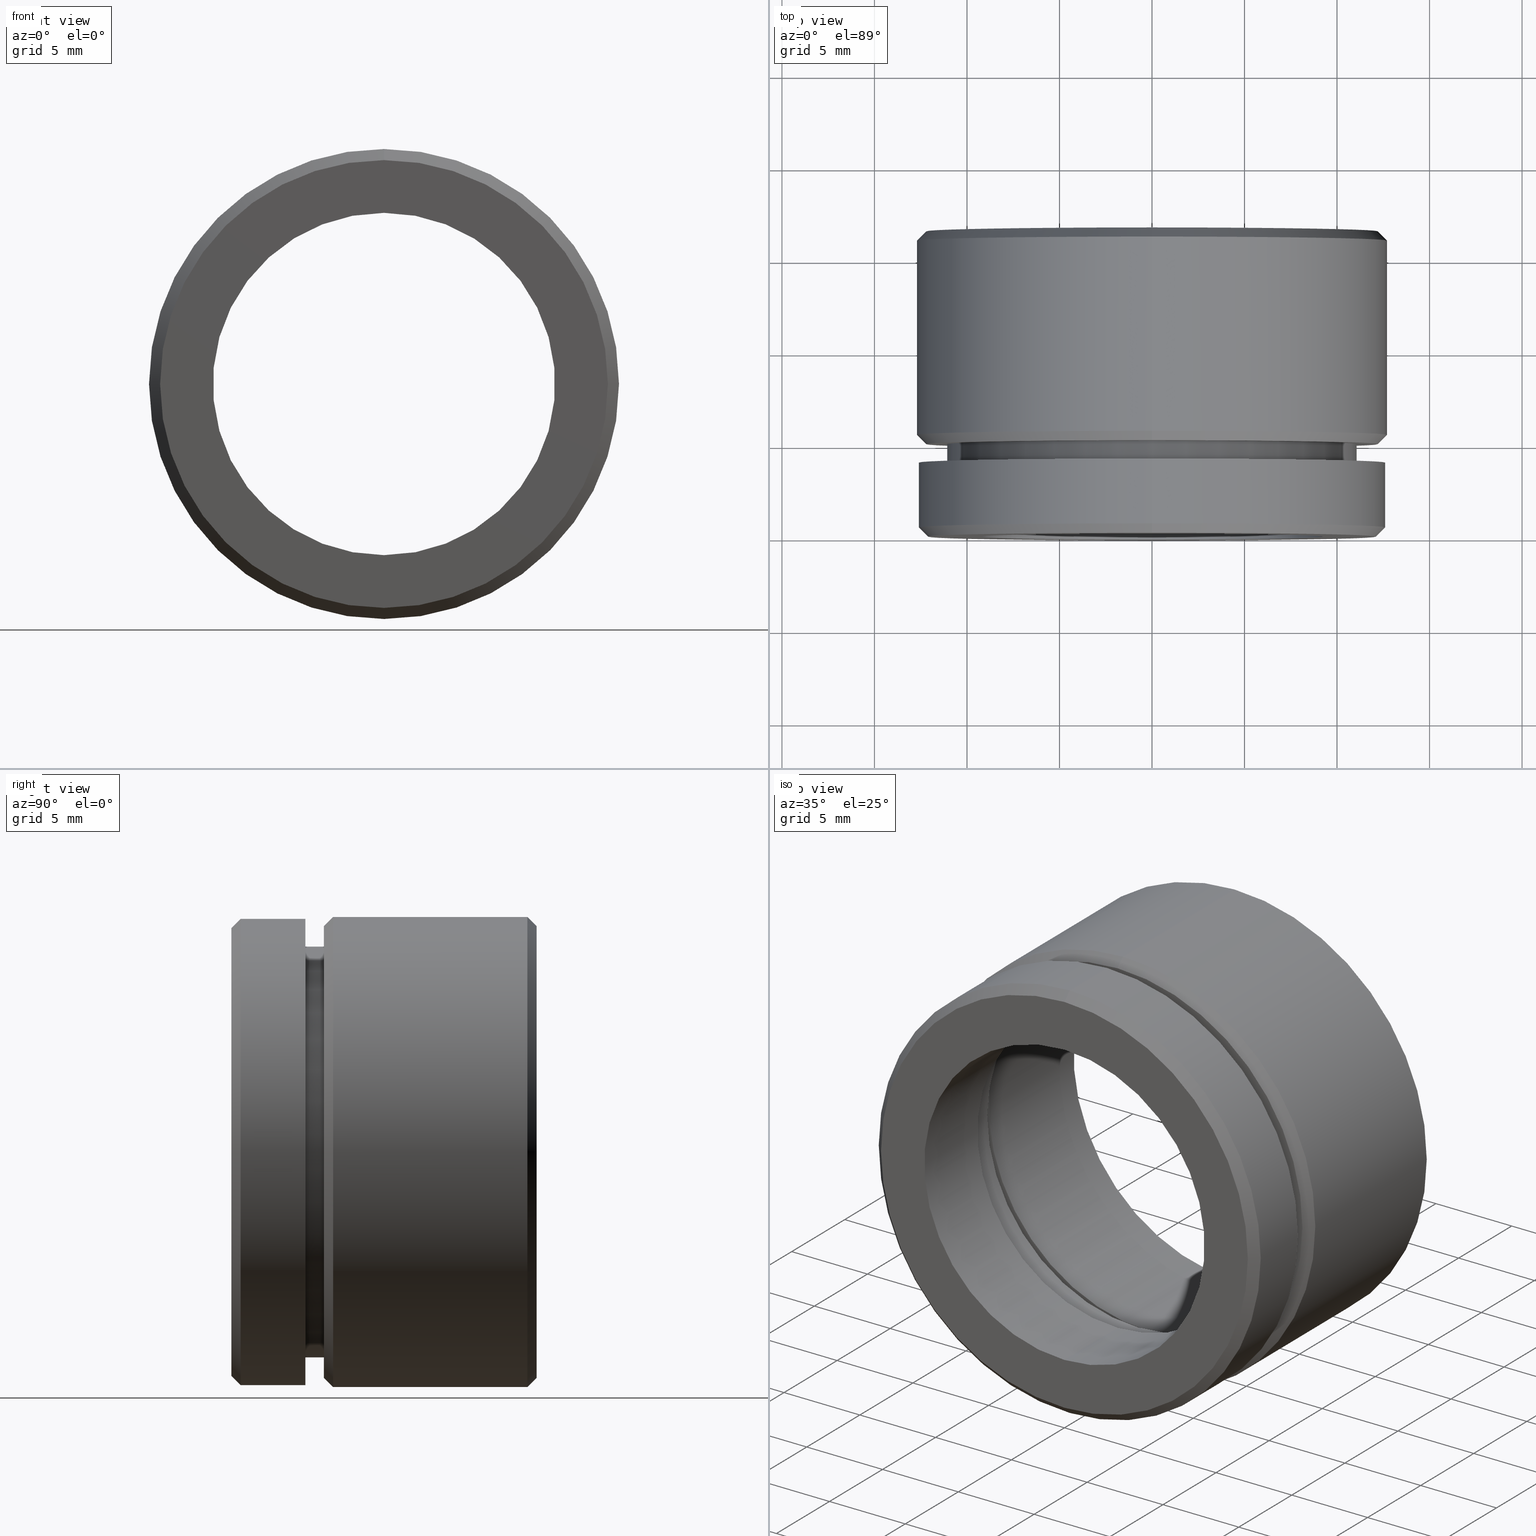
[diagram: canonical four-view strip — front | top / right | iso, engineering-drawing reading convention]
A machine part, canonical four-view strip (front | top / right | iso — engineering-drawing reading convention). The complete STEP part file that produces these views, byte-faithful:
ISO-10303-21;
HEADER;
FILE_DESCRIPTION (( 'STEP AP214' ),
    '1' );
FILE_NAME ('500024.STEP',
    '2019-09-03T06:52:03',
    ( 'user' ),
    ( '΢���й�' ),
    'SwSTEP 2.0',
    'SolidWorks 2016',
    '' );
FILE_SCHEMA (( 'AUTOMOTIVE_DESIGN' ));
ENDSEC;

DATA;
#1 = CARTESIAN_POINT ( 'NONE',  ( 0.0000000000000000000, 0.0000000000000000000, -9.250000000000000000 ) ) ;
#2 = DIRECTION ( 'NONE',  ( -0.0000000000000000000, -1.000000000000000000, -0.0000000000000000000 ) ) ;
#3 = EDGE_CURVE ( 'NONE', #344, #82, #856, .T. ) ;
#4 = CARTESIAN_POINT ( 'NONE',  ( 0.0000000000000000000, 5.000000000000000000, 0.0000000000000000000 ) ) ;
#5 = VECTOR ( 'NONE', #164, 1000.000000000000000 ) ;
#6 = EDGE_LOOP ( 'NONE', ( #822, #708, #574, #639 ) ) ;
#7 = ORIENTED_EDGE ( 'NONE', *, *, #21, .T. ) ;
#8 = AXIS2_PLACEMENT_3D ( 'NONE', #81, #495, #845 ) ;
#9 =( NAMED_UNIT ( * ) SI_UNIT ( $, .STERADIAN. ) SOLID_ANGLE_UNIT ( ) );
#10 = ORIENTED_EDGE ( 'NONE', *, *, #167, .F. ) ;
#11 = FACE_OUTER_BOUND ( 'NONE', #6, .T. ) ;
#12 = CIRCLE ( 'NONE', #433, 12.69999999999999900 ) ;
#13 = EDGE_CURVE ( 'NONE', #564, #826, #815, .T. ) ;
#14 = AXIS2_PLACEMENT_3D ( 'NONE', #618, #261, #501 ) ;
#15 = ORIENTED_EDGE ( 'NONE', *, *, #637, .F. ) ;
#16 = CARTESIAN_POINT ( 'NONE',  ( 0.0000000000000000000, 0.0000000000000000000, 0.0000000000000000000 ) ) ;
#17 = AXIS2_PLACEMENT_3D ( 'NONE', #459, #754, #486 ) ;
#18 = DIRECTION ( 'NONE',  ( -0.0000000000000000000, 1.000000000000000000, -0.0000000000000000000 ) ) ;
#19 = AXIS2_PLACEMENT_3D ( 'NONE', #101, #191, #176 ) ;
#20 = CARTESIAN_POINT ( 'NONE',  ( 0.0000000000000000000, 5.499999999999988500, 0.0000000000000000000 ) ) ;
#21 = EDGE_CURVE ( 'NONE', #236, #691, #420, .T. ) ;
#22 = ADVANCED_FACE ( 'NONE', ( #839, #373 ), #624, .T. ) ;
#23 = FILL_AREA_STYLE ('',( #783 ) ) ;
#24 = CYLINDRICAL_SURFACE ( 'NONE', #631, 11.69999999999999900 ) ;
#25 = SURFACE_STYLE_FILL_AREA ( #380 ) ;
#26 = SHAPE_DEFINITION_REPRESENTATION ( #325, #57 ) ;
#27 =( NAMED_UNIT ( * ) PLANE_ANGLE_UNIT ( ) SI_UNIT ( $, .RADIAN. ) );
#28 = DIRECTION ( 'NONE',  ( -0.0000000000000000000, -1.000000000000000000, -0.0000000000000000000 ) ) ;
#29 = DIRECTION ( 'NONE',  ( 0.0000000000000000000, -0.0000000000000000000, 1.000000000000000000 ) ) ;
#30 = SURFACE_STYLE_FILL_AREA ( #731 ) ;
#31 = DIRECTION ( 'NONE',  ( -0.0000000000000000000, -1.000000000000000000, -0.0000000000000000000 ) ) ;
#32 = CARTESIAN_POINT ( 'NONE',  ( 0.0000000000000000000, 0.0000000000000000000, 0.0000000000000000000 ) ) ;
#33 = EDGE_CURVE ( 'NONE', #59, #398, #781, .T. ) ;
#34 = LINE ( 'NONE', #442, #113 ) ;
#35 = ORIENTED_EDGE ( 'NONE', *, *, #651, .T. ) ;
#36 = AXIS2_PLACEMENT_3D ( 'NONE', #423, #308, #599 ) ;
#37 = DIRECTION ( 'NONE',  ( 0.0000000000000000000, 0.0000000000000000000, -1.000000000000000000 ) ) ;
#38 = DIRECTION ( 'NONE',  ( 0.0000000000000000000, 1.000000000000000000, 0.0000000000000000000 ) ) ;
#39 = CARTESIAN_POINT ( 'NONE',  ( 0.0000000000000000000, 8.000000000000000000, -11.69999999999999800 ) ) ;
#40 = FACE_OUTER_BOUND ( 'NONE', #874, .T. ) ;
#41 = CARTESIAN_POINT ( 'NONE',  ( 0.0000000000000000000, 0.0000000000000000000, -12.60000000000000000 ) ) ;
#42 = FACE_OUTER_BOUND ( 'NONE', #129, .T. ) ;
#43 = CIRCLE ( 'NONE', #859, 12.20000000000001700 ) ;
#44 = DIRECTION ( 'NONE',  ( -0.0000000000000000000, -1.000000000000000000, -0.0000000000000000000 ) ) ;
#45 = EDGE_CURVE ( 'NONE', #67, #546, #871, .T. ) ;
#46 = DIRECTION ( 'NONE',  ( -0.0000000000000000000, -1.000000000000000000, -0.0000000000000000000 ) ) ;
#47 = EDGE_LOOP ( 'NONE', ( #590, #533, #264, #830 ) ) ;
#48 = CARTESIAN_POINT ( 'NONE',  ( 1.224646799147353300E-015, 0.0000000000000000000, 10.00000000000000000 ) ) ;
#49 = DIRECTION ( 'NONE',  ( -0.0000000000000000000, -1.000000000000000000, -0.0000000000000000000 ) ) ;
#50 = CARTESIAN_POINT ( 'NONE',  ( 1.512438796946981500E-015, 0.0000000000000000000, -12.10000000000000500 ) ) ;
#51 = AXIS2_PLACEMENT_3D ( 'NONE', #370, #630, #614 ) ;
#52 = ORIENTED_EDGE ( 'NONE', *, *, #572, .T. ) ;
#53 = AXIS2_PLACEMENT_3D ( 'NONE', #849, #492, #320 ) ;
#54 = ORIENTED_EDGE ( 'NONE', *, *, #865, .T. ) ;
#55 = COLOUR_RGB ( '',1.000000000000000000, 1.000000000000000000, 1.000000000000000000 ) ;
#56 = CONICAL_SURFACE ( 'NONE', #570, 12.20000000000001700, 0.7853981633974431700 ) ;
#57 = ADVANCED_BREP_SHAPE_REPRESENTATION ( '500024', ( #541, #515 ), #680 ) ;
#58 = VERTEX_POINT ( 'NONE', #256 ) ;
#59 = VERTEX_POINT ( 'NONE', #72 ) ;
#60 = VERTEX_POINT ( 'NONE', #504 ) ;
#61 = EDGE_CURVE ( 'NONE', #802, #307, #792, .T. ) ;
#62 = CARTESIAN_POINT ( 'NONE',  ( 0.0000000000000000000, 16.50000000000000000, 0.0000000000000000000 ) ) ;
#63 = AXIS2_PLACEMENT_3D ( 'NONE', #75, #46, #840 ) ;
#64 = DIRECTION ( 'NONE',  ( -0.0000000000000000000, -1.000000000000000000, -0.0000000000000000000 ) ) ;
#65 = ADVANCED_FACE ( 'NONE', ( #872 ), #763, .F. ) ;
#66 = DIRECTION ( 'NONE',  ( -0.0000000000000000000, -1.000000000000000000, -0.0000000000000000000 ) ) ;
#67 = VERTEX_POINT ( 'NONE', #269 ) ;
#68 = FACE_OUTER_BOUND ( 'NONE', #601, .T. ) ;
#69 = EDGE_LOOP ( 'NONE', ( #15, #323, #193, #197 ) ) ;
#70 = AXIS2_PLACEMENT_3D ( 'NONE', #182, #728, #29 ) ;
#71 = DIRECTION ( 'NONE',  ( 0.0000000000000000000, 0.7071067811865512400, 0.7071067811865439100 ) ) ;
#72 = CARTESIAN_POINT ( 'NONE',  ( 1.359357947053562000E-015, 16.50000000000000000, -11.09999999999999800 ) ) ;
#73 = CIRCLE ( 'NONE', #759, 12.69999999999999900 ) ;
#74 = CARTESIAN_POINT ( 'NONE',  ( 0.0000000000000000000, 7.000000000000000900, 0.0000000000000000000 ) ) ;
#75 = CARTESIAN_POINT ( 'NONE',  ( 0.0000000000000000000, 7.000000000000000900, 0.0000000000000000000 ) ) ;
#76 = CARTESIAN_POINT ( 'NONE',  ( 0.0000000000000000000, 5.000000000000000000, 0.0000000000000000000 ) ) ;
#77 = CARTESIAN_POINT ( 'NONE',  ( 0.0000000000000000000, 5.000000000000000000, 12.20000000000001700 ) ) ;
#78 = ORIENTED_EDGE ( 'NONE', *, *, #824, .T. ) ;
#79 = CARTESIAN_POINT ( 'NONE',  ( 0.0000000000000000000, 4.000000000000000000, 0.0000000000000000000 ) ) ;
#80 = AXIS2_PLACEMENT_3D ( 'NONE', #636, #116, #644 ) ;
#81 = CARTESIAN_POINT ( 'NONE',  ( 0.0000000000000000000, 0.0000000000000000000, 0.0000000000000000000 ) ) ;
#82 = VERTEX_POINT ( 'NONE', #250 ) ;
#83 = EDGE_LOOP ( 'NONE', ( #107, #98 ) ) ;
#84 = AXIS2_PLACEMENT_3D ( 'NONE', #102, #672, #818 ) ;
#85 = ADVANCED_FACE ( 'NONE', ( #773 ), #751, .F. ) ;
#86 = EDGE_CURVE ( 'NONE', #119, #581, #758, .T. ) ;
#87 = ORIENTED_EDGE ( 'NONE', *, *, #579, .T. ) ;
#88 = CARTESIAN_POINT ( 'NONE',  ( 0.0000000000000000000, 5.000000000000000000, 0.0000000000000000000 ) ) ;
#89 = ADVANCED_FACE ( 'NONE', ( #801, #742 ), #210, .T. ) ;
#90 = ORIENTED_EDGE ( 'NONE', *, *, #579, .F. ) ;
#91 = CARTESIAN_POINT ( 'NONE',  ( 0.0000000000000000000, 0.0000000000000000000, 0.0000000000000000000 ) ) ;
#92 = CIRCLE ( 'NONE', #745, 12.69999999999999900 ) ;
#93 = CARTESIAN_POINT ( 'NONE',  ( 0.0000000000000000000, 8.000000000000001800, 0.0000000000000000000 ) ) ;
#94 = CONICAL_SURFACE ( 'NONE', #257, 12.69999999999999900, 0.7853981633974500600 ) ;
#95 = AXIS2_PLACEMENT_3D ( 'NONE', #841, #804, #366 ) ;
#96 = DIRECTION ( 'NONE',  ( -0.0000000000000000000, -1.000000000000000000, -0.0000000000000000000 ) ) ;
#97 = ORIENTED_EDGE ( 'NONE', *, *, #445, .F. ) ;
#98 = ORIENTED_EDGE ( 'NONE', *, *, #824, .F. ) ;
#99 = DIRECTION ( 'NONE',  ( 0.0000000000000000000, 0.0000000000000000000, -1.000000000000000000 ) ) ;
#100 = EDGE_LOOP ( 'NONE', ( #862, #472, #391, #395 ) ) ;
#101 = CARTESIAN_POINT ( 'NONE',  ( 0.0000000000000000000, 0.0000000000000000000, 0.0000000000000000000 ) ) ;
#102 = CARTESIAN_POINT ( 'NONE',  ( 0.0000000000000000000, 5.000000000000000000, 0.0000000000000000000 ) ) ;
#103 = EDGE_LOOP ( 'NONE', ( #204, #727 ) ) ;
#104 = EDGE_LOOP ( 'NONE', ( #633, #304, #222, #171 ) ) ;
#105 = FACE_OUTER_BOUND ( 'NONE', #112, .T. ) ;
#106 = EDGE_CURVE ( 'NONE', #411, #566, #771, .T. ) ;
#107 = ORIENTED_EDGE ( 'NONE', *, *, #458, .F. ) ;
#108 = AXIS2_PLACEMENT_3D ( 'NONE', #450, #793, #317 ) ;
#109 = EDGE_LOOP ( 'NONE', ( #578, #246, #739, #549 ) ) ;
#110 = ADVANCED_FACE ( 'NONE', ( #761 ), #56, .T. ) ;
#111 = DIRECTION ( 'NONE',  ( 0.0000000000000000000, 0.0000000000000000000, -1.000000000000000000 ) ) ;
#112 = EDGE_LOOP ( 'NONE', ( #338, #429 ) ) ;
#113 = VECTOR ( 'NONE', #296, 1000.000000000000000 ) ;
#114 = VERTEX_POINT ( 'NONE', #364 ) ;
#115 = AXIS2_PLACEMENT_3D ( 'NONE', #503, #485, #178 ) ;
#116 = DIRECTION ( 'NONE',  ( -0.0000000000000000000, -1.000000000000000000, -0.0000000000000000000 ) ) ;
#117 = AXIS2_PLACEMENT_3D ( 'NONE', #455, #451, #518 ) ;
#118 = ORIENTED_EDGE ( 'NONE', *, *, #326, .F. ) ;
#119 = VERTEX_POINT ( 'NONE', #50 ) ;
#120 = VECTOR ( 'NONE', #527, 1000.000000000000000 ) ;
#121 = ORIENTED_EDGE ( 'NONE', *, *, #788, .F. ) ;
#122 = ORIENTED_EDGE ( 'NONE', *, *, #755, .T. ) ;
#123 = AXIS2_PLACEMENT_3D ( 'NONE', #687, #608, #417 ) ;
#124 = EDGE_LOOP ( 'NONE', ( #375, #221 ) ) ;
#125 = DIRECTION ( 'NONE',  ( 0.0000000000000000000, 1.000000000000000000, 0.0000000000000000000 ) ) ;
#126 = UNCERTAINTY_MEASURE_WITH_UNIT (LENGTH_MEASURE( 1.000000000000000100E-005 ), #293, 'distance_accuracy_value', 'NONE');
#127 = DIRECTION ( 'NONE',  ( 0.0000000000000000000, 0.0000000000000000000, -1.000000000000000000 ) ) ;
#128 = ORIENTED_EDGE ( 'NONE', *, *, #61, .F. ) ;
#129 = EDGE_LOOP ( 'NONE', ( #662, #389, #52, #7 ) ) ;
#130 = AXIS2_PLACEMENT_3D ( 'NONE', #170, #616, #355 ) ;
#131 = FACE_BOUND ( 'NONE', #679, .T. ) ;
#132 = AXIS2_PLACEMENT_3D ( 'NONE', #469, #481, #655 ) ;
#133 = CARTESIAN_POINT ( 'NONE',  ( 0.0000000000000000000, 0.0000000000000000000, 0.0000000000000000000 ) ) ;
#134 = CARTESIAN_POINT ( 'NONE',  ( 11.10000000000000000, 5.000000000000000000, 0.0000000000000000000 ) ) ;
#135 = EDGE_LOOP ( 'NONE', ( #175, #456, #827, #767 ) ) ;
#136 = CONICAL_SURFACE ( 'NONE', #833, 12.69999999999999900, 0.7853981633974500600 ) ;
#137 = DIRECTION ( 'NONE',  ( 0.0000000000000000000, -0.7071067811865463500, -0.7071067811865487900 ) ) ;
#138 = CARTESIAN_POINT ( 'NONE',  ( 0.0000000000000000000, 5.000000000000000000, -11.10000000000000000 ) ) ;
#139 = FACE_BOUND ( 'NONE', #409, .T. ) ;
#140 = CARTESIAN_POINT ( 'NONE',  ( 1.359357947053562200E-015, 0.0000000000000000000, 11.10000000000000000 ) ) ;
#141 = ORIENTED_EDGE ( 'NONE', *, *, #732, .F. ) ;
#142 = VECTOR ( 'NONE', #277, 1000.000000000000000 ) ;
#143 = CARTESIAN_POINT ( 'NONE',  ( 0.0000000000000000000, 16.50000000000000000, 11.09999999999999800 ) ) ;
#144 = AXIS2_PLACEMENT_3D ( 'NONE', #332, #255, #665 ) ;
#145 = ORIENTED_EDGE ( 'NONE', *, *, #220, .T. ) ;
#146 = LINE ( 'NONE', #140, #5 ) ;
#147 = EDGE_LOOP ( 'NONE', ( #90, #577, #225, #656 ) ) ;
#148 = DIRECTION ( 'NONE',  ( 0.0000000000000000000, 0.0000000000000000000, -1.000000000000000000 ) ) ;
#149 = EDGE_CURVE ( 'NONE', #566, #408, #803, .T. ) ;
#150 = APPLICATION_CONTEXT ( 'automotive_design' ) ;
#151 = EDGE_LOOP ( 'NONE', ( #619, #159 ) ) ;
#152 = CARTESIAN_POINT ( 'NONE',  ( 0.0000000000000000000, 5.000000000000000000, 0.0000000000000000000 ) ) ;
#153 = FACE_OUTER_BOUND ( 'NONE', #196, .T. ) ;
#154 = CYLINDRICAL_SURFACE ( 'NONE', #123, 11.10000000000000000 ) ;
#155 = CIRCLE ( 'NONE', #195, 11.10000000000000000 ) ;
#156 = SURFACE_STYLE_USAGE ( .BOTH. , #838 ) ;
#157 = VECTOR ( 'NONE', #327, 1000.000000000000000 ) ;
#158 = ORIENTED_EDGE ( 'NONE', *, *, #367, .F. ) ;
#159 = ORIENTED_EDGE ( 'NONE', *, *, #543, .F. ) ;
#160 = DIRECTION ( 'NONE',  ( 0.0000000000000000000, 0.0000000000000000000, -1.000000000000000000 ) ) ;
#161 = PLANE ( 'NONE',  #563 ) ;
#162 = EDGE_CURVE ( 'NONE', #231, #434, #336, .T. ) ;
#163 = ORIENTED_EDGE ( 'NONE', *, *, #748, .T. ) ;
#164 = DIRECTION ( 'NONE',  ( -0.0000000000000000000, -1.000000000000000000, -0.0000000000000000000 ) ) ;
#165 = AXIS2_PLACEMENT_3D ( 'NONE', #382, #582, #127 ) ;
#166 = ADVANCED_FACE ( 'NONE', ( #750 ), #789, .T. ) ;
#167 = EDGE_CURVE ( 'NONE', #307, #802, #219, .T. ) ;
#168 = EDGE_LOOP ( 'NONE', ( #516, #189, #764, #217 ) ) ;
#169 = LINE ( 'NONE', #331, #157 ) ;
#170 = CARTESIAN_POINT ( 'NONE',  ( 0.0000000000000000000, 8.000000000000001800, 0.0000000000000000000 ) ) ;
#171 = ORIENTED_EDGE ( 'NONE', *, *, #852, .F. ) ;
#172 = EDGE_LOOP ( 'NONE', ( #128, #10 ) ) ;
#173 = DIRECTION ( 'NONE',  ( -0.0000000000000000000, -1.000000000000000000, -0.0000000000000000000 ) ) ;
#174 = ORIENTED_EDGE ( 'NONE', *, *, #162, .T. ) ;
#175 = ORIENTED_EDGE ( 'NONE', *, *, #615, .F. ) ;
#176 = DIRECTION ( 'NONE',  ( 0.0000000000000000000, 0.0000000000000000000, -1.000000000000000000 ) ) ;
#177 =( NAMED_UNIT ( * ) SI_UNIT ( $, .STERADIAN. ) SOLID_ANGLE_UNIT ( ) );
#178 = DIRECTION ( 'NONE',  ( 0.0000000000000000000, 0.0000000000000000000, -1.000000000000000000 ) ) ;
#179 = FILL_AREA_STYLE_COLOUR ( '', #674 ) ;
#180 = EDGE_CURVE ( 'NONE', #634, #186, #517, .T. ) ;
#181 = ORIENTED_EDGE ( 'NONE', *, *, #301, .T. ) ;
#182 = CARTESIAN_POINT ( 'NONE',  ( 10.00000000000000000, 5.000000000000000000, 0.0000000000000000000 ) ) ;
#183 = PRESENTATION_STYLE_ASSIGNMENT (( #743 ) ) ;
#184 = ORIENTED_EDGE ( 'NONE', *, *, #852, .T. ) ;
#185 = AXIS2_PLACEMENT_3D ( 'NONE', #555, #208, #206 ) ;
#186 = VERTEX_POINT ( 'NONE', #585 ) ;
#187 = ORIENTED_EDGE ( 'NONE', *, *, #33, .T. ) ;
#188 = CYLINDRICAL_SURFACE ( 'NONE', #439, 10.60000000000000100 ) ;
#189 = ORIENTED_EDGE ( 'NONE', *, *, #765, .T. ) ;
#190 = ORIENTED_EDGE ( 'NONE', *, *, #314, .F. ) ;
#191 = DIRECTION ( 'NONE',  ( -0.0000000000000000000, -1.000000000000000000, -0.0000000000000000000 ) ) ;
#192 = DIRECTION ( 'NONE',  ( -0.0000000000000000000, -1.000000000000000000, -0.0000000000000000000 ) ) ;
#193 = ORIENTED_EDGE ( 'NONE', *, *, #685, .T. ) ;
#194 = ORIENTED_EDGE ( 'NONE', *, *, #493, .F. ) ;
#195 = AXIS2_PLACEMENT_3D ( 'NONE', #392, #192, #226 ) ;
#196 = EDGE_LOOP ( 'NONE', ( #437, #571, #673, #645 ) ) ;
#197 = ORIENTED_EDGE ( 'NONE', *, *, #714, .T. ) ;
#198 = AXIS2_PLACEMENT_3D ( 'NONE', #88, #96, #232 ) ;
#199 = DIRECTION ( 'NONE',  ( 0.0000000000000000000, 0.0000000000000000000, -1.000000000000000000 ) ) ;
#200 = EDGE_CURVE ( 'NONE', #546, #307, #762, .T. ) ;
#201 = VERTEX_POINT ( 'NONE', #1 ) ;
#202 = DIRECTION ( 'NONE',  ( -0.0000000000000000000, -1.000000000000000000, -0.0000000000000000000 ) ) ;
#203 = DIRECTION ( 'NONE',  ( 0.0000000000000000000, 0.0000000000000000000, 1.000000000000000000 ) ) ;
#204 = ORIENTED_EDGE ( 'NONE', *, *, #493, .T. ) ;
#205 = ADVANCED_FACE ( 'NONE', ( #869 ), #462, .T. ) ;
#206 = DIRECTION ( 'NONE',  ( 0.0000000000000000000, 0.0000000000000000000, -1.000000000000000000 ) ) ;
#207 = CARTESIAN_POINT ( 'NONE',  ( 11.69999999999999900, 7.000000000000000900, 0.0000000000000000000 ) ) ;
#208 = DIRECTION ( 'NONE',  ( -0.0000000000000000000, -1.000000000000000000, -0.0000000000000000000 ) ) ;
#209 = ORIENTED_EDGE ( 'NONE', *, *, #314, .T. ) ;
#210 = PLANE ( 'NONE',  #602 ) ;
#211 = PLANE ( 'NONE',  #557 ) ;
#212 = CIRCLE ( 'NONE', #569, 12.60000000000000000 ) ;
#213 = FACE_OUTER_BOUND ( 'NONE', #147, .T. ) ;
#214 = CARTESIAN_POINT ( 'NONE',  ( 0.0000000000000000000, 5.000000000000000000, 0.0000000000000000000 ) ) ;
#215 = AXIS2_PLACEMENT_3D ( 'NONE', #487, #218, #431 ) ;
#216 = ADVANCED_FACE ( 'NONE', ( #553, #319 ), #646, .T. ) ;
#217 = ORIENTED_EDGE ( 'NONE', *, *, #149, .F. ) ;
#218 = DIRECTION ( 'NONE',  ( 0.0000000000000000000, 1.000000000000000000, 0.0000000000000000000 ) ) ;
#219 = CIRCLE ( 'NONE', #144, 10.00000000000000000 ) ;
#220 = EDGE_CURVE ( 'NONE', #546, #67, #328, .T. ) ;
#221 = ORIENTED_EDGE ( 'NONE', *, *, #106, .T. ) ;
#222 = ORIENTED_EDGE ( 'NONE', *, *, #149, .T. ) ;
#223 = CARTESIAN_POINT ( 'NONE',  ( 0.0000000000000000000, 0.0000000000000000000, -11.69999999999999900 ) ) ;
#224 = CIRCLE ( 'NONE', #349, 11.10000000000000000 ) ;
#225 = ORIENTED_EDGE ( 'NONE', *, *, #505, .F. ) ;
#226 = DIRECTION ( 'NONE',  ( 0.0000000000000000000, 0.0000000000000000000, -1.000000000000000000 ) ) ;
#227 = CARTESIAN_POINT ( 'NONE',  ( 1.224646799147353300E-015, 7.000000000000000900, 10.00000000000000000 ) ) ;
#228 = FACE_OUTER_BOUND ( 'NONE', #821, .T. ) ;
#229 = CARTESIAN_POINT ( 'NONE',  ( 0.0000000000000000000, 15.99999999999999600, 0.0000000000000000000 ) ) ;
#230 = CIRCLE ( 'NONE', #443, 11.10000000000000000 ) ;
#231 = VERTEX_POINT ( 'NONE', #441 ) ;
#232 = DIRECTION ( 'NONE',  ( 0.0000000000000000000, 0.0000000000000000000, -1.000000000000000000 ) ) ;
#233 = EDGE_CURVE ( 'NONE', #114, #528, #347, .T. ) ;
#234 = AXIS2_PLACEMENT_3D ( 'NONE', #738, #241, #741 ) ;
#235 = DIRECTION ( 'NONE',  ( -0.0000000000000000000, -1.000000000000000000, -0.0000000000000000000 ) ) ;
#236 = VERTEX_POINT ( 'NONE', #498 ) ;
#237 = VECTOR ( 'NONE', #548, 1000.000000000000000 ) ;
#238 = CARTESIAN_POINT ( 'NONE',  ( 1.132798289211301700E-015, 0.0000000000000000000, 9.250000000000000000 ) ) ;
#239 = CARTESIAN_POINT ( 'NONE',  ( 1.555301434917138400E-015, 15.99999999999999600, 12.69999999999999900 ) ) ;
#240 = CARTESIAN_POINT ( 'NONE',  ( 0.0000000000000000000, 8.000000000000001800, -10.60000000000000100 ) ) ;
#241 = DIRECTION ( 'NONE',  ( -0.0000000000000000000, -1.000000000000000000, -0.0000000000000000000 ) ) ;
#242 = EDGE_LOOP ( 'NONE', ( #772, #556, #870, #660 ) ) ;
#243 = ORIENTED_EDGE ( 'NONE', *, *, #561, .F. ) ;
#244 = DIRECTION ( 'NONE',  ( -0.0000000000000000000, -1.000000000000000000, -0.0000000000000000000 ) ) ;
#245 = AXIS2_PLACEMENT_3D ( 'NONE', #843, #18, #321 ) ;
#246 = ORIENTED_EDGE ( 'NONE', *, *, #45, .F. ) ;
#247 = CARTESIAN_POINT ( 'NONE',  ( 1.359357947053562000E-015, 16.50000000000000000, -11.09999999999999800 ) ) ;
#248 = CYLINDRICAL_SURFACE ( 'NONE', #132, 10.00000000000000000 ) ;
#249 = ADVANCED_FACE ( 'NONE', ( #11 ), #635, .T. ) ;
#250 = CARTESIAN_POINT ( 'NONE',  ( 1.298125607096194600E-015, 8.000000000000001800, 10.60000000000000100 ) ) ;
#251 = EDGE_CURVE ( 'NONE', #826, #691, #524, .T. ) ;
#252 = CARTESIAN_POINT ( 'NONE',  ( 0.0000000000000000000, 0.4999999999999970000, -12.60000000000000000 ) ) ;
#253 = CIRCLE ( 'NONE', #559, 11.09999999999999800 ) ;
#254 = DIRECTION ( 'NONE',  ( -0.0000000000000000000, -1.000000000000000000, -0.0000000000000000000 ) ) ;
#255 = DIRECTION ( 'NONE',  ( -0.0000000000000000000, -1.000000000000000000, -0.0000000000000000000 ) ) ;
#256 = CARTESIAN_POINT ( 'NONE',  ( 1.359357947053562200E-015, 4.000000000000000000, 11.10000000000000000 ) ) ;
#257 = AXIS2_PLACEMENT_3D ( 'NONE', #653, #64, #354 ) ;
#258 = CARTESIAN_POINT ( 'NONE',  ( 0.0000000000000000000, 7.000000000000000900, 0.0000000000000000000 ) ) ;
#259 = DIRECTION ( 'NONE',  ( 0.0000000000000000000, 0.7071067811865451300, 0.7071067811865500200 ) ) ;
#260 = FACE_OUTER_BOUND ( 'NONE', #104, .T. ) ;
#261 = DIRECTION ( 'NONE',  ( -0.0000000000000000000, 1.000000000000000000, -0.0000000000000000000 ) ) ;
#262 = EDGE_LOOP ( 'NONE', ( #697, #812, #174, #536 ) ) ;
#263 = MECHANICAL_DESIGN_GEOMETRIC_PRESENTATION_REPRESENTATION (  '', ( #820 ), #778 ) ;
#264 = ORIENTED_EDGE ( 'NONE', *, *, #428, .T. ) ;
#265 = ORIENTED_EDGE ( 'NONE', *, *, #473, .T. ) ;
#266 =( LENGTH_UNIT ( ) NAMED_UNIT ( * ) SI_UNIT ( .MILLI., .METRE. ) );
#267 = EDGE_CURVE ( 'NONE', #274, #114, #496, .T. ) ;
#268 = CARTESIAN_POINT ( 'NONE',  ( 1.524685264938455600E-015, 5.000000000000000000, -12.20000000000001700 ) ) ;
#269 = CARTESIAN_POINT ( 'NONE',  ( 0.0000000000000000000, 7.000000000000000900, -10.00000000000000000 ) ) ;
#270 = APPLICATION_PROTOCOL_DEFINITION ( 'draft international standard', 'automotive_design', 1998, #447 ) ;
#271 = FACE_OUTER_BOUND ( 'NONE', #340, .T. ) ;
#272 = CARTESIAN_POINT ( 'NONE',  ( 1.524685264938454400E-015, 16.50000000000000000, 12.19999999999999400 ) ) ;
#273 = ADVANCED_FACE ( 'NONE', ( #562 ), #368, .T. ) ;
#274 = VERTEX_POINT ( 'NONE', #362 ) ;
#275 = DIRECTION ( 'NONE',  ( 0.0000000000000000000, 0.0000000000000000000, 1.000000000000000000 ) ) ;
#276 = COLOUR_RGB ( '',1.000000000000000000, 1.000000000000000000, 1.000000000000000000 ) ;
#277 = DIRECTION ( 'NONE',  ( -0.0000000000000000000, -1.000000000000000000, -0.0000000000000000000 ) ) ;
#278 = EDGE_CURVE ( 'NONE', #67, #802, #733, .T. ) ;
#279 = EDGE_LOOP ( 'NONE', ( #190, #352 ) ) ;
#280 = CARTESIAN_POINT ( 'NONE',  ( 0.0000000000000000000, 16.00000000000000700, -10.60000000000000100 ) ) ;
#281 = CIRCLE ( 'NONE', #185, 9.250000000000000000 ) ;
#282 = PRODUCT_CONTEXT ( 'NONE', #150, 'mechanical' ) ;
#283 = UNCERTAINTY_MEASURE_WITH_UNIT (LENGTH_MEASURE( 1.000000000000000100E-005 ), #471, 'distance_accuracy_value', 'NONE');
#284 = CARTESIAN_POINT ( 'NONE',  ( 1.224646799147353300E-015, 5.000000000000000000, 10.00000000000000000 ) ) ;
#285 = AXIS2_PLACEMENT_3D ( 'NONE', #853, #855, #805 ) ;
#286 = CARTESIAN_POINT ( 'NONE',  ( 1.432836755002402900E-015, 8.000000000000000000, 11.69999999999999800 ) ) ;
#287 = PLANE ( 'NONE',  #817 ) ;
#288 = DIRECTION ( 'NONE',  ( 8.659560562354889700E-017, 0.7071067811865512400, -0.7071067811865439100 ) ) ;
#289 = SURFACE_STYLE_USAGE ( .BOTH. , #664 ) ;
#290 = DIRECTION ( 'NONE',  ( 0.0000000000000000000, 0.0000000000000000000, -1.000000000000000000 ) ) ;
#291 = CARTESIAN_POINT ( 'NONE',  ( 1.298125607096194600E-015, 16.00000000000000700, 10.60000000000000100 ) ) ;
#292 = ORIENTED_EDGE ( 'NONE', *, *, #598, .F. ) ;
#293 =( LENGTH_UNIT ( ) NAMED_UNIT ( * ) SI_UNIT ( .MILLI., .METRE. ) );
#294 =( GEOMETRIC_REPRESENTATION_CONTEXT ( 3 ) GLOBAL_UNCERTAINTY_ASSIGNED_CONTEXT ( ( #422 ) ) GLOBAL_UNIT_ASSIGNED_CONTEXT ( ( #799, #667, #385 ) ) REPRESENTATION_CONTEXT ( 'NONE', 'WORKASPACE' ) );
#295 = CARTESIAN_POINT ( 'NONE',  ( 1.494069094959772800E-015, 5.000000000000000000, -12.20000000000001700 ) ) ;
#296 = DIRECTION ( 'NONE',  ( 8.659560562354950100E-017, -0.7071067811865463500, 0.7071067811865487900 ) ) ;
#297 = AXIS2_PLACEMENT_3D ( 'NONE', #258, #586, #642 ) ;
#298 = PRODUCT_DEFINITION_CONTEXT ( 'detailed design', #447, 'design' ) ;
#299 = ADVANCED_FACE ( 'NONE', ( #711, #857 ), #161, .T. ) ;
#300 = VERTEX_POINT ( 'NONE', #280 ) ;
#301 = EDGE_CURVE ( 'NONE', #842, #363, #607, .T. ) ;
#302 = DIRECTION ( 'NONE',  ( -0.0000000000000000000, 1.000000000000000000, -0.0000000000000000000 ) ) ;
#303 = VECTOR ( 'NONE', #137, 1000.000000000000000 ) ;
#304 = ORIENTED_EDGE ( 'NONE', *, *, #844, .F. ) ;
#305 = DIRECTION ( 'NONE',  ( 0.0000000000000000000, 0.7071067811865487900, 0.7071067811865463500 ) ) ;
#306 = CARTESIAN_POINT ( 'NONE',  ( 0.0000000000000000000, 16.00000000000000700, 0.0000000000000000000 ) ) ;
#307 = VERTEX_POINT ( 'NONE', #284 ) ;
#308 = DIRECTION ( 'NONE',  ( 0.0000000000000000000, 1.000000000000000000, 0.0000000000000000000 ) ) ;
#309 = CARTESIAN_POINT ( 'NONE',  ( 1.132798289211301700E-015, 0.0000000000000000000, 9.250000000000000000 ) ) ;
#310 = PRESENTATION_STYLE_ASSIGNMENT (( #156 ) ) ;
#311 = EDGE_LOOP ( 'NONE', ( #209, #181, #825, #594 ) ) ;
#312 = CARTESIAN_POINT ( 'NONE',  ( 0.0000000000000000000, 5.000000000000000000, 0.0000000000000000000 ) ) ;
#313 = AXIS2_PLACEMENT_3D ( 'NONE', #62, #125, #424 ) ;
#314 = EDGE_CURVE ( 'NONE', #231, #842, #609, .T. ) ;
#315 = FACE_OUTER_BOUND ( 'NONE', #47, .T. ) ;
#316 = DIRECTION ( 'NONE',  ( 0.0000000000000000000, 0.0000000000000000000, 1.000000000000000000 ) ) ;
#317 = DIRECTION ( 'NONE',  ( 0.0000000000000000000, 0.0000000000000000000, -1.000000000000000000 ) ) ;
#318 = VECTOR ( 'NONE', #343, 1000.000000000000000 ) ;
#319 = FACE_OUTER_BOUND ( 'NONE', #279, .T. ) ;
#320 = DIRECTION ( 'NONE',  ( 0.0000000000000000000, 0.0000000000000000000, -1.000000000000000000 ) ) ;
#321 = DIRECTION ( 'NONE',  ( 0.0000000000000000000, 0.0000000000000000000, 1.000000000000000000 ) ) ;
#322 = CARTESIAN_POINT ( 'NONE',  ( 1.432836755002403100E-015, 0.0000000000000000000, 11.69999999999999900 ) ) ;
#323 = ORIENTED_EDGE ( 'NONE', *, *, #702, .F. ) ;
#324 = FACE_BOUND ( 'NONE', #403, .T. ) ;
#325 = PRODUCT_DEFINITION_SHAPE ( 'NONE', 'NONE',  #499 ) ;
#326 = EDGE_CURVE ( 'NONE', #453, #60, #596, .T. ) ;
#327 = DIRECTION ( 'NONE',  ( -0.0000000000000000000, -1.000000000000000000, -0.0000000000000000000 ) ) ;
#328 = CIRCLE ( 'NONE', #757, 10.00000000000000000 ) ;
#329 =( LENGTH_UNIT ( ) NAMED_UNIT ( * ) SI_UNIT ( .MILLI., .METRE. ) );
#330 = AXIS2_PLACEMENT_3D ( 'NONE', #93, #461, #747 ) ;
#331 = CARTESIAN_POINT ( 'NONE',  ( 1.555301434917138400E-015, 0.0000000000000000000, 12.69999999999999900 ) ) ;
#332 = CARTESIAN_POINT ( 'NONE',  ( 0.0000000000000000000, 5.000000000000000000, 0.0000000000000000000 ) ) ;
#333 = CARTESIAN_POINT ( 'NONE',  ( 1.481822626968297900E-015, 0.0000000000000000000, -12.10000000000000500 ) ) ;
#334 = MECHANICAL_DESIGN_GEOMETRIC_PRESENTATION_REPRESENTATION (  '', ( #394 ), #294 ) ;
#335 = CARTESIAN_POINT ( 'NONE',  ( 1.543054966925665100E-015, 0.4999999999999970000, 12.60000000000000000 ) ) ;
#336 = LINE ( 'NONE', #41, #692 ) ;
#337 = EDGE_LOOP ( 'NONE', ( #158, #141, #122, #121 ) ) ;
#338 = ORIENTED_EDGE ( 'NONE', *, *, #732, .T. ) ;
#339 =( GEOMETRIC_REPRESENTATION_CONTEXT ( 3 ) GLOBAL_UNCERTAINTY_ASSIGNED_CONTEXT ( ( #283 ) ) GLOBAL_UNIT_ASSIGNED_CONTEXT ( ( #471, #628, #626 ) ) REPRESENTATION_CONTEXT ( 'NONE', 'WORKASPACE' ) );
#340 = EDGE_LOOP ( 'NONE', ( #243, #806, #613, #703 ) ) ;
#341 = CARTESIAN_POINT ( 'NONE',  ( 0.0000000000000000000, 16.50000000000000000, 0.0000000000000000000 ) ) ;
#342 = CLOSED_SHELL ( 'NONE', ( #249, #110, #795, #85, #696, #65, #785, #718, #819, #205, #770, #723, #831, #273, #216, #526, #89, #166, #782, #386, #299, #873, #866, #683, #22, #776, #816, #746, #752 ) ) ;
#343 = DIRECTION ( 'NONE',  ( -0.0000000000000000000, -1.000000000000000000, -0.0000000000000000000 ) ) ;
#344 = VERTEX_POINT ( 'NONE', #240 ) ;
#345 = CARTESIAN_POINT ( 'NONE',  ( 0.0000000000000000000, 5.000000000000000000, 12.20000000000001700 ) ) ;
#346 = CARTESIAN_POINT ( 'NONE',  ( 0.0000000000000000000, 5.499999999999988500, -12.69999999999999900 ) ) ;
#347 = LINE ( 'NONE', #791, #120 ) ;
#348 = EDGE_LOOP ( 'NONE', ( #477, #808 ) ) ;
#349 = AXIS2_PLACEMENT_3D ( 'NONE', #675, #254, #740 ) ;
#350 = DIRECTION ( 'NONE',  ( -0.0000000000000000000, -1.000000000000000000, -0.0000000000000000000 ) ) ;
#351 = VECTOR ( 'NONE', #259, 1000.000000000000100 ) ;
#352 = ORIENTED_EDGE ( 'NONE', *, *, #779, .F. ) ;
#353 = SURFACE_STYLE_USAGE ( .BOTH. , #701 ) ;
#354 = DIRECTION ( 'NONE',  ( 0.0000000000000000000, 0.0000000000000000000, -1.000000000000000000 ) ) ;
#355 = DIRECTION ( 'NONE',  ( 0.0000000000000000000, 0.0000000000000000000, -1.000000000000000000 ) ) ;
#356 = DIRECTION ( 'NONE',  ( -0.0000000000000000000, -1.000000000000000000, -0.0000000000000000000 ) ) ;
#357 = MECHANICAL_DESIGN_GEOMETRIC_PRESENTATION_REPRESENTATION (  '', ( #415 ), #339 ) ;
#358 = DIRECTION ( 'NONE',  ( 0.0000000000000000000, 0.0000000000000000000, -1.000000000000000000 ) ) ;
#359 = CARTESIAN_POINT ( 'NONE',  ( 12.69999999999999800, 16.50000000000000000, 0.0000000000000000000 ) ) ;
#360 = EDGE_CURVE ( 'NONE', #398, #59, #253, .T. ) ;
#361 = FILL_AREA_STYLE_COLOUR ( '', #55 ) ;
#362 = CARTESIAN_POINT ( 'NONE',  ( 0.0000000000000000000, 16.50000000000000000, -12.19999999999999400 ) ) ;
#363 = VERTEX_POINT ( 'NONE', #335 ) ;
#364 = CARTESIAN_POINT ( 'NONE',  ( 0.0000000000000000000, 15.99999999999999600, -12.69999999999999900 ) ) ;
#365 =( NAMED_UNIT ( * ) SI_UNIT ( $, .STERADIAN. ) SOLID_ANGLE_UNIT ( ) );
#366 = DIRECTION ( 'NONE',  ( 0.0000000000000000000, 0.0000000000000000000, -1.000000000000000000 ) ) ;
#367 = EDGE_CURVE ( 'NONE', #119, #434, #677, .T. ) ;
#368 = CYLINDRICAL_SURFACE ( 'NONE', #595, 12.60000000000000000 ) ;
#369 = CYLINDRICAL_SURFACE ( 'NONE', #470, 10.60000000000000100 ) ;
#370 = CARTESIAN_POINT ( 'NONE',  ( 0.0000000000000000000, 0.0000000000000000000, 0.0000000000000000000 ) ) ;
#371 = DIRECTION ( 'NONE',  ( 0.0000000000000000000, 0.0000000000000000000, 1.000000000000000000 ) ) ;
#372 = DIRECTION ( 'NONE',  ( 8.659560562354963700E-017, 0.7071067811865451300, -0.7071067811865500200 ) ) ;
#373 = FACE_OUTER_BOUND ( 'NONE', #172, .T. ) ;
#374 = PRESENTATION_STYLE_ASSIGNMENT (( #289 ) ) ;
#375 = ORIENTED_EDGE ( 'NONE', *, *, #844, .T. ) ;
#376 = CARTESIAN_POINT ( 'NONE',  ( 0.0000000000000000000, 0.0000000000000000000, -11.10000000000000000 ) ) ;
#377 = FILL_AREA_STYLE ('',( #867 ) ) ;
#378 = DIRECTION ( 'NONE',  ( 8.659560562354919300E-017, 0.7071067811865487900, -0.7071067811865463500 ) ) ;
#379 = AXIS2_PLACEMENT_3D ( 'NONE', #312, #66, #99 ) ;
#380 = FILL_AREA_STYLE ('',( #643 ) ) ;
#381 = FACE_OUTER_BOUND ( 'NONE', #592, .T. ) ;
#382 = CARTESIAN_POINT ( 'NONE',  ( 0.0000000000000000000, 0.0000000000000000000, 0.0000000000000000000 ) ) ;
#383 = CARTESIAN_POINT ( 'NONE',  ( 10.60000000000000100, 8.000000000000000000, 0.0000000000000000000 ) ) ;
#384 = EDGE_CURVE ( 'NONE', #300, #59, #554, .T. ) ;
#385 =( NAMED_UNIT ( * ) SI_UNIT ( $, .STERADIAN. ) SOLID_ANGLE_UNIT ( ) );
#386 = ADVANCED_FACE ( 'NONE', ( #271 ), #369, .F. ) ;
#387 = CARTESIAN_POINT ( 'NONE',  ( 0.0000000000000000000, 4.000000000000000000, 0.0000000000000000000 ) ) ;
#388 = CIRCLE ( 'NONE', #476, 10.60000000000000100 ) ;
#389 = ORIENTED_EDGE ( 'NONE', *, *, #13, .F. ) ;
#390 = CIRCLE ( 'NONE', #460, 11.10000000000000000 ) ;
#391 = ORIENTED_EDGE ( 'NONE', *, *, #402, .T. ) ;
#392 = CARTESIAN_POINT ( 'NONE',  ( 0.0000000000000000000, 5.000000000000000000, 0.0000000000000000000 ) ) ;
#393 = ORIENTED_EDGE ( 'NONE', *, *, #807, .F. ) ;
#394 = STYLED_ITEM ( 'NONE', ( #640 ), #785 ) ;
#395 = ORIENTED_EDGE ( 'NONE', *, *, #33, .F. ) ;
#396 = CARTESIAN_POINT ( 'NONE',  ( 0.0000000000000000000, 0.0000000000000000000, 0.0000000000000000000 ) ) ;
#397 = CYLINDRICAL_SURFACE ( 'NONE', #165, 10.00000000000000000 ) ;
#398 = VERTEX_POINT ( 'NONE', #143 ) ;
#399 = AXIS2_PLACEMENT_3D ( 'NONE', #724, #432, #539 ) ;
#400 = DIRECTION ( 'NONE',  ( -0.0000000000000000000, -1.000000000000000000, -0.0000000000000000000 ) ) ;
#401 = DIRECTION ( 'NONE',  ( 0.0000000000000000000, 0.0000000000000000000, -1.000000000000000000 ) ) ;
#402 = EDGE_CURVE ( 'NONE', #497, #398, #410, .T. ) ;
#403 = EDGE_LOOP ( 'NONE', ( #603, #187 ) ) ;
#404 = DIRECTION ( 'NONE',  ( -0.0000000000000000000, -1.000000000000000000, -0.0000000000000000000 ) ) ;
#405 = DIRECTION ( 'NONE',  ( 0.0000000000000000000, 0.0000000000000000000, -1.000000000000000000 ) ) ;
#406 = ORIENTED_EDGE ( 'NONE', *, *, #21, .F. ) ;
#407 = VERTEX_POINT ( 'NONE', #309 ) ;
#408 = VERTEX_POINT ( 'NONE', #494 ) ;
#409 = EDGE_LOOP ( 'NONE', ( #632, #654 ) ) ;
#410 = LINE ( 'NONE', #847, #351 ) ;
#411 = VERTEX_POINT ( 'NONE', #268 ) ;
#412 = EDGE_CURVE ( 'NONE', #300, #497, #388, .T. ) ;
#413 = DIRECTION ( 'NONE',  ( -0.0000000000000000000, -1.000000000000000000, -0.0000000000000000000 ) ) ;
#414 = CARTESIAN_POINT ( 'NONE',  ( 1.543054966925665100E-015, 0.0000000000000000000, 12.60000000000000000 ) ) ;
#415 = STYLED_ITEM ( 'NONE', ( #480 ), #541 ) ;
#416 = COLOUR_RGB ( '',1.000000000000000000, 1.000000000000000000, 1.000000000000000000 ) ;
#417 = DIRECTION ( 'NONE',  ( 0.0000000000000000000, 0.0000000000000000000, -1.000000000000000000 ) ) ;
#418 =( NAMED_UNIT ( * ) PLANE_ANGLE_UNIT ( ) SI_UNIT ( $, .RADIAN. ) );
#419 = DIRECTION ( 'NONE',  ( 0.0000000000000000000, 0.0000000000000000000, -1.000000000000000000 ) ) ;
#420 = CIRCLE ( 'NONE', #108, 11.69999999999999900 ) ;
#421 = PRODUCT ( '500024', '500024', '', ( #282 ) ) ;
#422 = UNCERTAINTY_MEASURE_WITH_UNIT (LENGTH_MEASURE( 1.000000000000000100E-005 ), #799, 'distance_accuracy_value', 'NONE');
#423 = CARTESIAN_POINT ( 'NONE',  ( 0.0000000000000000000, 16.50000000000000000, 0.0000000000000000000 ) ) ;
#424 = DIRECTION ( 'NONE',  ( 0.0000000000000000000, 0.0000000000000000000, 1.000000000000000000 ) ) ;
#425 = CONICAL_SURFACE ( 'NONE', #454, 11.09999999999999800, 0.7853981633974517200 ) ;
#426 = CONICAL_SURFACE ( 'NONE', #84, 12.20000000000001700, 0.7853981633974431700 ) ;
#427 = PRESENTATION_LAYER_ASSIGNMENT (  '', '', ( #415 ) ) ;
#428 = EDGE_CURVE ( 'NONE', #408, #528, #452, .T. ) ;
#429 = ORIENTED_EDGE ( 'NONE', *, *, #86, .T. ) ;
#430 = VECTOR ( 'NONE', #756, 1000.000000000000000 ) ;
#431 = DIRECTION ( 'NONE',  ( 0.0000000000000000000, 0.0000000000000000000, -1.000000000000000000 ) ) ;
#432 = DIRECTION ( 'NONE',  ( -0.0000000000000000000, -1.000000000000000000, -0.0000000000000000000 ) ) ;
#433 = AXIS2_PLACEMENT_3D ( 'NONE', #474, #621, #712 ) ;
#434 = VERTEX_POINT ( 'NONE', #252 ) ;
#435 = DIRECTION ( 'NONE',  ( -0.0000000000000000000, -1.000000000000000000, -0.0000000000000000000 ) ) ;
#436 = CIRCLE ( 'NONE', #784, 12.60000000000000000 ) ;
#437 = ORIENTED_EDGE ( 'NONE', *, *, #520, .F. ) ;
#438 = FACE_OUTER_BOUND ( 'NONE', #242, .T. ) ;
#439 = AXIS2_PLACEMENT_3D ( 'NONE', #16, #28, #405 ) ;
#440 = CARTESIAN_POINT ( 'NONE',  ( 1.298125607096194600E-015, 0.0000000000000000000, 10.60000000000000100 ) ) ;
#441 = CARTESIAN_POINT ( 'NONE',  ( 0.0000000000000000000, 4.000000000000000000, -12.60000000000000000 ) ) ;
#442 = CARTESIAN_POINT ( 'NONE',  ( 1.555301434917138400E-015, 15.99999999999999600, 12.69999999999999900 ) ) ;
#443 = AXIS2_PLACEMENT_3D ( 'NONE', #444, #534, #512 ) ;
#444 = CARTESIAN_POINT ( 'NONE',  ( 0.0000000000000000000, 4.000000000000000000, 0.0000000000000000000 ) ) ;
#445 = EDGE_CURVE ( 'NONE', #813, #408, #169, .T. ) ;
#446 = FACE_OUTER_BOUND ( 'NONE', #829, .T. ) ;
#447 = APPLICATION_CONTEXT ( 'automotive_design' ) ;
#448 = CYLINDRICAL_SURFACE ( 'NONE', #707, 9.250000000000000000 ) ;
#449 =( NAMED_UNIT ( * ) SI_UNIT ( $, .STERADIAN. ) SOLID_ANGLE_UNIT ( ) );
#450 = CARTESIAN_POINT ( 'NONE',  ( 0.0000000000000000000, 7.000000000000000900, 0.0000000000000000000 ) ) ;
#451 = DIRECTION ( 'NONE',  ( -0.0000000000000000000, -1.000000000000000000, -0.0000000000000000000 ) ) ;
#452 = CIRCLE ( 'NONE', #490, 12.69999999999999900 ) ;
#453 = VERTEX_POINT ( 'NONE', #138 ) ;
#454 = AXIS2_PLACEMENT_3D ( 'NONE', #467, #735, #835 ) ;
#455 = CARTESIAN_POINT ( 'NONE',  ( 0.0000000000000000000, 8.000000000000000000, 0.0000000000000000000 ) ) ;
#456 = ORIENTED_EDGE ( 'NONE', *, *, #251, .T. ) ;
#457 = DIRECTION ( 'NONE',  ( 0.0000000000000000000, -1.000000000000000000, -0.0000000000000000000 ) ) ;
#458 = EDGE_CURVE ( 'NONE', #453, #625, #390, .T. ) ;
#459 = CARTESIAN_POINT ( 'NONE',  ( 0.0000000000000000000, 0.0000000000000000000, 0.0000000000000000000 ) ) ;
#460 = AXIS2_PLACEMENT_3D ( 'NONE', #152, #836, #690 ) ;
#461 = DIRECTION ( 'NONE',  ( -0.0000000000000000000, -1.000000000000000000, -0.0000000000000000000 ) ) ;
#462 = CYLINDRICAL_SURFACE ( 'NONE', #734, 12.60000000000000000 ) ;
#463 = SURFACE_SIDE_STYLE ('',( #30 ) ) ;
#464 = EDGE_LOOP ( 'NONE', ( #97, #54, #506, #184 ) ) ;
#465 = SURFACE_STYLE_USAGE ( .BOTH. , #861 ) ;
#466 = CARTESIAN_POINT ( 'NONE',  ( 0.0000000000000000000, 0.0000000000000000000, 0.0000000000000000000 ) ) ;
#467 = CARTESIAN_POINT ( 'NONE',  ( 0.0000000000000000000, 16.50000000000000000, 0.0000000000000000000 ) ) ;
#468 = SURFACE_STYLE_FILL_AREA ( #377 ) ;
#469 = CARTESIAN_POINT ( 'NONE',  ( 0.0000000000000000000, 0.0000000000000000000, 0.0000000000000000000 ) ) ;
#470 = AXIS2_PLACEMENT_3D ( 'NONE', #396, #537, #111 ) ;
#471 =( LENGTH_UNIT ( ) NAMED_UNIT ( * ) SI_UNIT ( .MILLI., .METRE. ) );
#472 = ORIENTED_EDGE ( 'NONE', *, *, #620, .F. ) ;
#473 = EDGE_CURVE ( 'NONE', #625, #58, #146, .T. ) ;
#474 = CARTESIAN_POINT ( 'NONE',  ( 0.0000000000000000000, 15.99999999999999600, 0.0000000000000000000 ) ) ;
#475 = DIRECTION ( 'NONE',  ( -0.0000000000000000000, -1.000000000000000000, -0.0000000000000000000 ) ) ;
#476 = AXIS2_PLACEMENT_3D ( 'NONE', #306, #302, #275 ) ;
#477 = ORIENTED_EDGE ( 'NONE', *, *, #702, .T. ) ;
#478 = CONICAL_SURFACE ( 'NONE', #17, 12.10000000000000500, 0.7853981633974466100 ) ;
#479 = DIRECTION ( 'NONE',  ( 0.0000000000000000000, 0.0000000000000000000, -1.000000000000000000 ) ) ;
#480 = PRESENTATION_STYLE_ASSIGNMENT (( #465 ) ) ;
#481 = DIRECTION ( 'NONE',  ( -0.0000000000000000000, -1.000000000000000000, -0.0000000000000000000 ) ) ;
#482 = PRODUCT_RELATED_PRODUCT_CATEGORY ( 'part', '', ( #421 ) ) ;
#483 = CARTESIAN_POINT ( 'NONE',  ( 0.0000000000000000000, 5.499999999999988500, 0.0000000000000000000 ) ) ;
#484 = CARTESIAN_POINT ( 'NONE',  ( 1.132798289211301700E-015, 5.000000000000000000, 9.250000000000000000 ) ) ;
#485 = DIRECTION ( 'NONE',  ( -0.0000000000000000000, -1.000000000000000000, -0.0000000000000000000 ) ) ;
#486 = DIRECTION ( 'NONE',  ( 0.0000000000000000000, 0.0000000000000000000, 1.000000000000000000 ) ) ;
#487 = CARTESIAN_POINT ( 'NONE',  ( 0.0000000000000000000, 0.4999999999999970000, 0.0000000000000000000 ) ) ;
#488 = PRODUCT_DEFINITION_FORMATION_WITH_SPECIFIED_SOURCE ( '�κ�', '', #421, .NOT_KNOWN. ) ;
#489 = CYLINDRICAL_SURFACE ( 'NONE', #399, 11.10000000000000000 ) ;
#490 = AXIS2_PLACEMENT_3D ( 'NONE', #483, #686, #722 ) ;
#491 = LINE ( 'NONE', #295, #606 ) ;
#492 = DIRECTION ( 'NONE',  ( -0.0000000000000000000, -1.000000000000000000, -0.0000000000000000000 ) ) ;
#493 = EDGE_CURVE ( 'NONE', #60, #58, #230, .T. ) ;
#494 = CARTESIAN_POINT ( 'NONE',  ( 1.555301434917138400E-015, 5.499999999999988500, 12.69999999999999900 ) ) ;
#495 = DIRECTION ( 'NONE',  ( -0.0000000000000000000, -1.000000000000000000, -0.0000000000000000000 ) ) ;
#496 = LINE ( 'NONE', #676, #303 ) ;
#497 = VERTEX_POINT ( 'NONE', #291 ) ;
#498 = CARTESIAN_POINT ( 'NONE',  ( 0.0000000000000000000, 7.000000000000000900, -11.69999999999999900 ) ) ;
#499 = PRODUCT_DEFINITION ( 'δ֪', '', #488, #298 ) ;
#500 = ORIENTED_EDGE ( 'NONE', *, *, #402, .F. ) ;
#501 = DIRECTION ( 'NONE',  ( 0.0000000000000000000, 0.0000000000000000000, 1.000000000000000000 ) ) ;
#502 = UNCERTAINTY_MEASURE_WITH_UNIT (LENGTH_MEASURE( 1.000000000000000100E-005 ), #809, 'distance_accuracy_value', 'NONE');
#503 = CARTESIAN_POINT ( 'NONE',  ( 0.0000000000000000000, 0.0000000000000000000, 0.0000000000000000000 ) ) ;
#504 = CARTESIAN_POINT ( 'NONE',  ( 0.0000000000000000000, 4.000000000000000000, -11.10000000000000000 ) ) ;
#505 = EDGE_CURVE ( 'NONE', #114, #813, #12, .T. ) ;
#506 = ORIENTED_EDGE ( 'NONE', *, *, #233, .T. ) ;
#507 = FILL_AREA_STYLE ('',( #510 ) ) ;
#508 =( GEOMETRIC_REPRESENTATION_CONTEXT ( 3 ) GLOBAL_UNCERTAINTY_ASSIGNED_CONTEXT ( ( #552 ) ) GLOBAL_UNIT_ASSIGNED_CONTEXT ( ( #329, #418, #177 ) ) REPRESENTATION_CONTEXT ( 'NONE', 'WORKASPACE' ) );
#509 = LINE ( 'NONE', #568, #530 ) ;
#510 = FILL_AREA_STYLE_COLOUR ( '', #699 ) ;
#511 = SURFACE_STYLE_FILL_AREA ( #507 ) ;
#512 = DIRECTION ( 'NONE',  ( 0.0000000000000000000, 0.0000000000000000000, -1.000000000000000000 ) ) ;
#513 = DIRECTION ( 'NONE',  ( 0.0000000000000000000, 1.000000000000000000, 0.0000000000000000000 ) ) ;
#514 = ORIENTED_EDGE ( 'NONE', *, *, #458, .T. ) ;
#515 = AXIS2_PLACEMENT_3D ( 'NONE', #798, #550, #678 ) ;
#516 = ORIENTED_EDGE ( 'NONE', *, *, #106, .F. ) ;
#517 = CIRCLE ( 'NONE', #584, 9.250000000000000000 ) ;
#518 = DIRECTION ( 'NONE',  ( 0.0000000000000000000, 0.0000000000000000000, -1.000000000000000000 ) ) ;
#519 = CARTESIAN_POINT ( 'NONE',  ( 0.0000000000000000000, 0.0000000000000000000, 0.0000000000000000000 ) ) ;
#520 = EDGE_CURVE ( 'NONE', #837, #813, #34, .T. ) ;
#521 = DIRECTION ( 'NONE',  ( -0.0000000000000000000, -1.000000000000000000, -0.0000000000000000000 ) ) ;
#522 = LINE ( 'NONE', #823, #580 ) ;
#523 = MECHANICAL_DESIGN_GEOMETRIC_PRESENTATION_REPRESENTATION (  '', ( #547 ), #508 ) ;
#524 = LINE ( 'NONE', #322, #318 ) ;
#525 = DIRECTION ( 'NONE',  ( 0.0000000000000000000, 1.000000000000000000, 0.0000000000000000000 ) ) ;
#526 = ADVANCED_FACE ( 'NONE', ( #68 ), #489, .T. ) ;
#527 = DIRECTION ( 'NONE',  ( -0.0000000000000000000, -1.000000000000000000, -0.0000000000000000000 ) ) ;
#528 = VERTEX_POINT ( 'NONE', #346 ) ;
#529 = DIRECTION ( 'NONE',  ( 0.0000000000000000000, 0.0000000000000000000, -1.000000000000000000 ) ) ;
#530 = VECTOR ( 'NONE', #435, 1000.000000000000000 ) ;
#531 = FILL_AREA_STYLE ('',( #361 ) ) ;
#532 = PRESENTATION_LAYER_ASSIGNMENT (  '', '', ( #547 ) ) ;
#533 = ORIENTED_EDGE ( 'NONE', *, *, #445, .T. ) ;
#534 = DIRECTION ( 'NONE',  ( -0.0000000000000000000, -1.000000000000000000, -0.0000000000000000000 ) ) ;
#535 = EDGE_CURVE ( 'NONE', #300, #344, #509, .T. ) ;
#536 = ORIENTED_EDGE ( 'NONE', *, *, #788, .T. ) ;
#537 = DIRECTION ( 'NONE',  ( -0.0000000000000000000, -1.000000000000000000, -0.0000000000000000000 ) ) ;
#538 = DIRECTION ( 'NONE',  ( 0.0000000000000000000, 0.0000000000000000000, -1.000000000000000000 ) ) ;
#539 = DIRECTION ( 'NONE',  ( 0.0000000000000000000, 0.0000000000000000000, -1.000000000000000000 ) ) ;
#540 = ORIENTED_EDGE ( 'NONE', *, *, #167, .T. ) ;
#541 = MANIFOLD_SOLID_BREP ( '����1', #342 ) ;
#542 = ORIENTED_EDGE ( 'NONE', *, *, #13, .T. ) ;
#543 = EDGE_CURVE ( 'NONE', #82, #344, #605, .T. ) ;
#544 = DIRECTION ( 'NONE',  ( -0.0000000000000000000, -1.000000000000000000, -0.0000000000000000000 ) ) ;
#545 = PLANE ( 'NONE',  #658 ) ;
#546 = VERTEX_POINT ( 'NONE', #227 ) ;
#547 = STYLED_ITEM ( 'NONE', ( #310 ), #386 ) ;
#548 = DIRECTION ( 'NONE',  ( -0.0000000000000000000, -1.000000000000000000, -0.0000000000000000000 ) ) ;
#549 = ORIENTED_EDGE ( 'NONE', *, *, #61, .T. ) ;
#550 = DIRECTION ( 'NONE',  ( 0.0000000000000000000, 0.0000000000000000000, 1.000000000000000000 ) ) ;
#551 = CARTESIAN_POINT ( 'NONE',  ( 0.0000000000000000000, 0.0000000000000000000, -9.250000000000000000 ) ) ;
#552 = UNCERTAINTY_MEASURE_WITH_UNIT (LENGTH_MEASURE( 1.000000000000000100E-005 ), #329, 'distance_accuracy_value', 'NONE');
#553 = FACE_BOUND ( 'NONE', #103, .T. ) ;
#554 = LINE ( 'NONE', #247, #587 ) ;
#555 = CARTESIAN_POINT ( 'NONE',  ( 0.0000000000000000000, 0.0000000000000000000, 0.0000000000000000000 ) ) ;
#556 = ORIENTED_EDGE ( 'NONE', *, *, #561, .T. ) ;
#557 = AXIS2_PLACEMENT_3D ( 'NONE', #359, #744, #710 ) ;
#558 = CARTESIAN_POINT ( 'NONE',  ( 9.250000000000000000, 0.0000000000000000000, 0.0000000000000000000 ) ) ;
#559 = AXIS2_PLACEMENT_3D ( 'NONE', #341, #350, #371 ) ;
#560 = CARTESIAN_POINT ( 'NONE',  ( 0.0000000000000000000, 0.4999999999999970000, 0.0000000000000000000 ) ) ;
#561 = EDGE_CURVE ( 'NONE', #497, #82, #583, .T. ) ;
#562 = FACE_OUTER_BOUND ( 'NONE', #262, .T. ) ;
#563 = AXIS2_PLACEMENT_3D ( 'NONE', #383, #864, #479 ) ;
#564 = VERTEX_POINT ( 'NONE', #39 ) ;
#565 = UNCERTAINTY_MEASURE_WITH_UNIT (LENGTH_MEASURE( 1.000000000000000100E-005 ), #266, 'distance_accuracy_value', 'NONE');
#566 = VERTEX_POINT ( 'NONE', #345 ) ;
#567 = DIRECTION ( 'NONE',  ( 0.0000000000000000000, -0.0000000000000000000, 1.000000000000000000 ) ) ;
#568 = CARTESIAN_POINT ( 'NONE',  ( 0.0000000000000000000, 0.0000000000000000000, -10.60000000000000100 ) ) ;
#569 = AXIS2_PLACEMENT_3D ( 'NONE', #560, #828, #790 ) ;
#570 = AXIS2_PLACEMENT_3D ( 'NONE', #214, #513, #203 ) ;
#571 = ORIENTED_EDGE ( 'NONE', *, *, #748, .F. ) ;
#572 = EDGE_CURVE ( 'NONE', #564, #236, #671, .T. ) ;
#573 = UNCERTAINTY_MEASURE_WITH_UNIT (LENGTH_MEASURE( 1.000000000000000100E-005 ), #713, 'distance_accuracy_value', 'NONE');
#574 = ORIENTED_EDGE ( 'NONE', *, *, #661, .F. ) ;
#575 = CIRCLE ( 'NONE', #297, 11.69999999999999900 ) ;
#576 =( GEOMETRIC_REPRESENTATION_CONTEXT ( 3 ) GLOBAL_UNCERTAINTY_ASSIGNED_CONTEXT ( ( #126 ) ) GLOBAL_UNIT_ASSIGNED_CONTEXT ( ( #293, #860, #9 ) ) REPRESENTATION_CONTEXT ( 'NONE', 'WORKASPACE' ) );
#577 = ORIENTED_EDGE ( 'NONE', *, *, #520, .T. ) ;
#578 = ORIENTED_EDGE ( 'NONE', *, *, #200, .F. ) ;
#579 = EDGE_CURVE ( 'NONE', #837, #274, #669, .T. ) ;
#580 = VECTOR ( 'NONE', #305, 1000.000000000000000 ) ;
#581 = VERTEX_POINT ( 'NONE', #858 ) ;
#582 = DIRECTION ( 'NONE',  ( -0.0000000000000000000, -1.000000000000000000, -0.0000000000000000000 ) ) ;
#583 = LINE ( 'NONE', #440, #629 ) ;
#584 = AXIS2_PLACEMENT_3D ( 'NONE', #4, #2, #766 ) ;
#585 = CARTESIAN_POINT ( 'NONE',  ( 0.0000000000000000000, 5.000000000000000000, -9.250000000000000000 ) ) ;
#586 = DIRECTION ( 'NONE',  ( -0.0000000000000000000, -1.000000000000000000, -0.0000000000000000000 ) ) ;
#587 = VECTOR ( 'NONE', #372, 1000.000000000000100 ) ;
#588 = VECTOR ( 'NONE', #356, 1000.000000000000000 ) ;
#589 = ORIENTED_EDGE ( 'NONE', *, *, #685, .F. ) ;
#590 = ORIENTED_EDGE ( 'NONE', *, *, #505, .T. ) ;
#591 = CARTESIAN_POINT ( 'NONE',  ( 0.0000000000000000000, 5.000000000000000000, -10.00000000000000000 ) ) ;
#592 = EDGE_LOOP ( 'NONE', ( #623, #610, #35, #589 ) ) ;
#593 = MECHANICAL_DESIGN_GEOMETRIC_PRESENTATION_REPRESENTATION (  '', ( #648 ), #576 ) ;
#594 = ORIENTED_EDGE ( 'NONE', *, *, #162, .F. ) ;
#595 = AXIS2_PLACEMENT_3D ( 'NONE', #519, #173, #787 ) ;
#596 = LINE ( 'NONE', #376, #588 ) ;
#597 = CARTESIAN_POINT ( 'NONE',  ( 1.359357947053562200E-015, 5.000000000000000000, 11.10000000000000000 ) ) ;
#598 = EDGE_CURVE ( 'NONE', #691, #236, #575, .T. ) ;
#599 = DIRECTION ( 'NONE',  ( 0.0000000000000000000, 0.0000000000000000000, 1.000000000000000000 ) ) ;
#600 = VECTOR ( 'NONE', #244, 1000.000000000000000 ) ;
#601 = EDGE_LOOP ( 'NONE', ( #717, #78, #814, #393 ) ) ;
#602 = AXIS2_PLACEMENT_3D ( 'NONE', #134, #457, #148 ) ;
#603 = ORIENTED_EDGE ( 'NONE', *, *, #360, .T. ) ;
#604 = ORIENTED_EDGE ( 'NONE', *, *, #200, .T. ) ;
#605 = CIRCLE ( 'NONE', #330, 10.60000000000000100 ) ;
#606 = VECTOR ( 'NONE', #288, 1000.000000000000000 ) ;
#607 = LINE ( 'NONE', #414, #600 ) ;
#608 = DIRECTION ( 'NONE',  ( -0.0000000000000000000, -1.000000000000000000, -0.0000000000000000000 ) ) ;
#609 = CIRCLE ( 'NONE', #622, 12.60000000000000000 ) ;
#610 = ORIENTED_EDGE ( 'NONE', *, *, #637, .T. ) ;
#611 = PRESENTATION_LAYER_ASSIGNMENT (  '', '', ( #648 ) ) ;
#612 = DIRECTION ( 'NONE',  ( 0.0000000000000000000, 1.000000000000000000, 0.0000000000000000000 ) ) ;
#613 = ORIENTED_EDGE ( 'NONE', *, *, #535, .T. ) ;
#614 = DIRECTION ( 'NONE',  ( 0.0000000000000000000, 0.0000000000000000000, -1.000000000000000000 ) ) ;
#615 = EDGE_CURVE ( 'NONE', #826, #564, #627, .T. ) ;
#616 = DIRECTION ( 'NONE',  ( -0.0000000000000000000, -1.000000000000000000, -0.0000000000000000000 ) ) ;
#617 = DIRECTION ( 'NONE',  ( 0.0000000000000000000, -0.0000000000000000000, 1.000000000000000000 ) ) ;
#618 = CARTESIAN_POINT ( 'NONE',  ( 0.0000000000000000000, 16.50000000000000000, 0.0000000000000000000 ) ) ;
#619 = ORIENTED_EDGE ( 'NONE', *, *, #3, .F. ) ;
#620 = EDGE_CURVE ( 'NONE', #497, #300, #715, .T. ) ;
#621 = DIRECTION ( 'NONE',  ( -0.0000000000000000000, -1.000000000000000000, -0.0000000000000000000 ) ) ;
#622 = AXIS2_PLACEMENT_3D ( 'NONE', #387, #404, #401 ) ;
#623 = ORIENTED_EDGE ( 'NONE', *, *, #180, .F. ) ;
#624 = PLANE ( 'NONE',  #70 ) ;
#625 = VERTEX_POINT ( 'NONE', #597 ) ;
#626 =( NAMED_UNIT ( * ) SI_UNIT ( $, .STERADIAN. ) SOLID_ANGLE_UNIT ( ) );
#627 = CIRCLE ( 'NONE', #285, 11.69999999999999800 ) ;
#628 =( NAMED_UNIT ( * ) PLANE_ANGLE_UNIT ( ) SI_UNIT ( $, .RADIAN. ) );
#629 = VECTOR ( 'NONE', #235, 1000.000000000000000 ) ;
#630 = DIRECTION ( 'NONE',  ( -0.0000000000000000000, -1.000000000000000000, -0.0000000000000000000 ) ) ;
#631 = AXIS2_PLACEMENT_3D ( 'NONE', #466, #202, #419 ) ;
#632 = ORIENTED_EDGE ( 'NONE', *, *, #714, .F. ) ;
#633 = ORIENTED_EDGE ( 'NONE', *, *, #765, .F. ) ;
#634 = VERTEX_POINT ( 'NONE', #484 ) ;
#635 = CONICAL_SURFACE ( 'NONE', #698, 12.10000000000000500, 0.7853981633974466100 ) ;
#636 = CARTESIAN_POINT ( 'NONE',  ( 0.0000000000000000000, 16.50000000000000000, 0.0000000000000000000 ) ) ;
#637 = EDGE_CURVE ( 'NONE', #634, #407, #730, .T. ) ;
#638 = FACE_OUTER_BOUND ( 'NONE', #337, .T. ) ;
#639 = ORIENTED_EDGE ( 'NONE', *, *, #755, .F. ) ;
#640 = PRESENTATION_STYLE_ASSIGNMENT (( #353 ) ) ;
#641 =( GEOMETRIC_REPRESENTATION_CONTEXT ( 3 ) GLOBAL_UNCERTAINTY_ASSIGNED_CONTEXT ( ( #502 ) ) GLOBAL_UNIT_ASSIGNED_CONTEXT ( ( #809, #800, #449 ) ) REPRESENTATION_CONTEXT ( 'NONE', 'WORKASPACE' ) );
#642 = DIRECTION ( 'NONE',  ( 0.0000000000000000000, 0.0000000000000000000, -1.000000000000000000 ) ) ;
#643 = FILL_AREA_STYLE_COLOUR ( '', #276 ) ;
#644 = DIRECTION ( 'NONE',  ( 0.0000000000000000000, 0.0000000000000000000, 1.000000000000000000 ) ) ;
#645 = ORIENTED_EDGE ( 'NONE', *, *, #865, .F. ) ;
#646 = PLANE ( 'NONE',  #719 ) ;
#647 = CYLINDRICAL_SURFACE ( 'NONE', #115, 9.250000000000000000 ) ;
#648 = STYLED_ITEM ( 'NONE', ( #374 ), #57 ) ;
#649 = CYLINDRICAL_SURFACE ( 'NONE', #51, 12.69999999999999900 ) ;
#650 = MECHANICAL_DESIGN_GEOMETRIC_PRESENTATION_REPRESENTATION (  '', ( #688 ), #641 ) ;
#651 = EDGE_CURVE ( 'NONE', #407, #201, #706, .T. ) ;
#652 = VECTOR ( 'NONE', #378, 1000.000000000000000 ) ;
#653 = CARTESIAN_POINT ( 'NONE',  ( 0.0000000000000000000, 15.99999999999999600, 0.0000000000000000000 ) ) ;
#654 = ORIENTED_EDGE ( 'NONE', *, *, #651, .F. ) ;
#655 = DIRECTION ( 'NONE',  ( 0.0000000000000000000, 0.0000000000000000000, -1.000000000000000000 ) ) ;
#656 = ORIENTED_EDGE ( 'NONE', *, *, #267, .F. ) ;
#657 = FACE_OUTER_BOUND ( 'NONE', #726, .T. ) ;
#658 = AXIS2_PLACEMENT_3D ( 'NONE', #207, #38, #617 ) ;
#659 = CARTESIAN_POINT ( 'NONE',  ( 1.432836755002403100E-015, 7.000000000000000900, 11.69999999999999900 ) ) ;
#660 = ORIENTED_EDGE ( 'NONE', *, *, #535, .F. ) ;
#661 = EDGE_CURVE ( 'NONE', #363, #434, #850, .T. ) ;
#662 = ORIENTED_EDGE ( 'NONE', *, *, #251, .F. ) ;
#663 = PRESENTATION_STYLE_ASSIGNMENT (( #811 ) ) ;
#664 = SURFACE_SIDE_STYLE ('',( #25 ) ) ;
#665 = DIRECTION ( 'NONE',  ( 0.0000000000000000000, 0.0000000000000000000, -1.000000000000000000 ) ) ;
#666 = PRESENTATION_LAYER_ASSIGNMENT (  '', '', ( #688 ) ) ;
#667 =( NAMED_UNIT ( * ) PLANE_ANGLE_UNIT ( ) SI_UNIT ( $, .RADIAN. ) );
#668 = CIRCLE ( 'NONE', #198, 9.250000000000000000 ) ;
#669 = CIRCLE ( 'NONE', #313, 12.19999999999999400 ) ;
#670 = FACE_OUTER_BOUND ( 'NONE', #100, .T. ) ;
#671 = LINE ( 'NONE', #223, #684 ) ;
#672 = DIRECTION ( 'NONE',  ( 0.0000000000000000000, 1.000000000000000000, 0.0000000000000000000 ) ) ;
#673 = ORIENTED_EDGE ( 'NONE', *, *, #267, .T. ) ;
#674 = COLOUR_RGB ( '',1.000000000000000000, 1.000000000000000000, 1.000000000000000000 ) ;
#675 = CARTESIAN_POINT ( 'NONE',  ( 0.0000000000000000000, 4.000000000000000000, 0.0000000000000000000 ) ) ;
#676 = CARTESIAN_POINT ( 'NONE',  ( 0.0000000000000000000, 15.99999999999999600, -12.69999999999999900 ) ) ;
#677 = LINE ( 'NONE', #333, #652 ) ;
#678 = DIRECTION ( 'NONE',  ( 1.000000000000000000, 0.0000000000000000000, 0.0000000000000000000 ) ) ;
#679 = EDGE_LOOP ( 'NONE', ( #753, #145 ) ) ;
#680 =( GEOMETRIC_REPRESENTATION_CONTEXT ( 3 ) GLOBAL_UNCERTAINTY_ASSIGNED_CONTEXT ( ( #565 ) ) GLOBAL_UNIT_ASSIGNED_CONTEXT ( ( #266, #848, #681 ) ) REPRESENTATION_CONTEXT ( 'NONE', 'WORKASPACE' ) );
#681 =( NAMED_UNIT ( * ) SI_UNIT ( $, .STERADIAN. ) SOLID_ANGLE_UNIT ( ) );
#682 = ORIENTED_EDGE ( 'NONE', *, *, #278, .F. ) ;
#683 = ADVANCED_FACE ( 'NONE', ( #863 ), #397, .F. ) ;
#684 = VECTOR ( 'NONE', #475, 1000.000000000000000 ) ;
#685 = EDGE_CURVE ( 'NONE', #186, #201, #694, .T. ) ;
#686 = DIRECTION ( 'NONE',  ( 0.0000000000000000000, 1.000000000000000000, 0.0000000000000000000 ) ) ;
#687 = CARTESIAN_POINT ( 'NONE',  ( 0.0000000000000000000, 0.0000000000000000000, 0.0000000000000000000 ) ) ;
#688 = STYLED_ITEM ( 'NONE', ( #663 ), #273 ) ;
#689 = SURFACE_STYLE_FILL_AREA ( #531 ) ;
#690 = DIRECTION ( 'NONE',  ( 0.0000000000000000000, 0.0000000000000000000, -1.000000000000000000 ) ) ;
#691 = VERTEX_POINT ( 'NONE', #659 ) ;
#692 = VECTOR ( 'NONE', #44, 1000.000000000000000 ) ;
#693 = CIRCLE ( 'NONE', #95, 12.10000000000000500 ) ;
#694 = LINE ( 'NONE', #551, #237 ) ;
#695 = DIRECTION ( 'NONE',  ( -0.0000000000000000000, -1.000000000000000000, -0.0000000000000000000 ) ) ;
#696 = ADVANCED_FACE ( 'NONE', ( #657 ), #248, .F. ) ;
#697 = ORIENTED_EDGE ( 'NONE', *, *, #301, .F. ) ;
#698 = AXIS2_PLACEMENT_3D ( 'NONE', #91, #525, #316 ) ;
#699 = COLOUR_RGB ( '',1.000000000000000000, 1.000000000000000000, 1.000000000000000000 ) ;
#700 = EDGE_LOOP ( 'NONE', ( #716, #786, #705, #500 ) ) ;
#701 = SURFACE_SIDE_STYLE ('',( #468 ) ) ;
#702 = EDGE_CURVE ( 'NONE', #186, #634, #668, .T. ) ;
#703 = ORIENTED_EDGE ( 'NONE', *, *, #3, .T. ) ;
#704 = CARTESIAN_POINT ( 'NONE',  ( 1.543054966925665100E-015, 4.000000000000000000, 12.60000000000000000 ) ) ;
#705 = ORIENTED_EDGE ( 'NONE', *, *, #360, .F. ) ;
#706 = CIRCLE ( 'NONE', #234, 9.250000000000000000 ) ;
#707 = AXIS2_PLACEMENT_3D ( 'NONE', #133, #544, #529 ) ;
#708 = ORIENTED_EDGE ( 'NONE', *, *, #367, .T. ) ;
#709 = COLOUR_RGB ( '',1.000000000000000000, 1.000000000000000000, 1.000000000000000000 ) ;
#710 = DIRECTION ( 'NONE',  ( 0.0000000000000000000, -0.0000000000000000000, 1.000000000000000000 ) ) ;
#711 = FACE_OUTER_BOUND ( 'NONE', #729, .T. ) ;
#712 = DIRECTION ( 'NONE',  ( 0.0000000000000000000, 0.0000000000000000000, 1.000000000000000000 ) ) ;
#713 =( LENGTH_UNIT ( ) NAMED_UNIT ( * ) SI_UNIT ( .MILLI., .METRE. ) );
#714 = EDGE_CURVE ( 'NONE', #201, #407, #281, .T. ) ;
#715 = CIRCLE ( 'NONE', #245, 10.60000000000000100 ) ;
#716 = ORIENTED_EDGE ( 'NONE', *, *, #412, .F. ) ;
#717 = ORIENTED_EDGE ( 'NONE', *, *, #473, .F. ) ;
#718 = ADVANCED_FACE ( 'NONE', ( #315 ), #649, .T. ) ;
#719 = AXIS2_PLACEMENT_3D ( 'NONE', #796, #832, #567 ) ;
#720 = FACE_OUTER_BOUND ( 'NONE', #69, .T. ) ;
#721 = CIRCLE ( 'NONE', #36, 12.19999999999999400 ) ;
#722 = DIRECTION ( 'NONE',  ( 0.0000000000000000000, 0.0000000000000000000, -1.000000000000000000 ) ) ;
#723 = ADVANCED_FACE ( 'NONE', ( #720 ), #647, .F. ) ;
#724 = CARTESIAN_POINT ( 'NONE',  ( 0.0000000000000000000, 0.0000000000000000000, 0.0000000000000000000 ) ) ;
#725 = SURFACE_STYLE_FILL_AREA ( #23 ) ;
#726 = EDGE_LOOP ( 'NONE', ( #768, #604, #540, #682 ) ) ;
#727 = ORIENTED_EDGE ( 'NONE', *, *, #807, .T. ) ;
#728 = DIRECTION ( 'NONE',  ( 0.0000000000000000000, 1.000000000000000000, 0.0000000000000000000 ) ) ;
#729 = EDGE_LOOP ( 'NONE', ( #542, #749 ) ) ;
#730 = LINE ( 'NONE', #238, #737 ) ;
#731 = FILL_AREA_STYLE ('',( #179 ) ) ;
#732 = EDGE_CURVE ( 'NONE', #581, #119, #693, .T. ) ;
#733 = LINE ( 'NONE', #760, #142 ) ;
#734 = AXIS2_PLACEMENT_3D ( 'NONE', #834, #868, #797 ) ;
#735 = DIRECTION ( 'NONE',  ( -0.0000000000000000000, 1.000000000000000000, -0.0000000000000000000 ) ) ;
#736 = CARTESIAN_POINT ( 'NONE',  ( 0.0000000000000000000, 15.99999999999999600, 0.0000000000000000000 ) ) ;
#737 = VECTOR ( 'NONE', #695, 1000.000000000000000 ) ;
#738 = CARTESIAN_POINT ( 'NONE',  ( 0.0000000000000000000, 0.0000000000000000000, 0.0000000000000000000 ) ) ;
#739 = ORIENTED_EDGE ( 'NONE', *, *, #278, .T. ) ;
#740 = DIRECTION ( 'NONE',  ( 0.0000000000000000000, 0.0000000000000000000, -1.000000000000000000 ) ) ;
#741 = DIRECTION ( 'NONE',  ( 0.0000000000000000000, 0.0000000000000000000, -1.000000000000000000 ) ) ;
#742 = FACE_BOUND ( 'NONE', #83, .T. ) ;
#743 = SURFACE_STYLE_USAGE ( .BOTH. , #775 ) ;
#744 = DIRECTION ( 'NONE',  ( 0.0000000000000000000, 1.000000000000000000, 0.0000000000000000000 ) ) ;
#745 = AXIS2_PLACEMENT_3D ( 'NONE', #736, #854, #774 ) ;
#746 = ADVANCED_FACE ( 'NONE', ( #260 ), #426, .T. ) ;
#747 = DIRECTION ( 'NONE',  ( 0.0000000000000000000, 0.0000000000000000000, -1.000000000000000000 ) ) ;
#748 = EDGE_CURVE ( 'NONE', #274, #837, #721, .T. ) ;
#749 = ORIENTED_EDGE ( 'NONE', *, *, #615, .T. ) ;
#750 = FACE_OUTER_BOUND ( 'NONE', #464, .T. ) ;
#751 = CONICAL_SURFACE ( 'NONE', #14, 11.09999999999999800, 0.7853981633974517200 ) ;
#752 = ADVANCED_FACE ( 'NONE', ( #638 ), #478, .T. ) ;
#753 = ORIENTED_EDGE ( 'NONE', *, *, #45, .T. ) ;
#754 = DIRECTION ( 'NONE',  ( 0.0000000000000000000, 1.000000000000000000, 0.0000000000000000000 ) ) ;
#755 = EDGE_CURVE ( 'NONE', #581, #363, #522, .T. ) ;
#756 = DIRECTION ( 'NONE',  ( -0.0000000000000000000, -1.000000000000000000, -0.0000000000000000000 ) ) ;
#757 = AXIS2_PLACEMENT_3D ( 'NONE', #74, #521, #851 ) ;
#758 = CIRCLE ( 'NONE', #19, 12.10000000000000500 ) ;
#759 = AXIS2_PLACEMENT_3D ( 'NONE', #20, #612, #199 ) ;
#760 = CARTESIAN_POINT ( 'NONE',  ( 0.0000000000000000000, 0.0000000000000000000, -10.00000000000000000 ) ) ;
#761 = FACE_OUTER_BOUND ( 'NONE', #168, .T. ) ;
#762 = LINE ( 'NONE', #48, #430 ) ;
#763 = CYLINDRICAL_SURFACE ( 'NONE', #8, 11.69999999999999900 ) ;
#764 = ORIENTED_EDGE ( 'NONE', *, *, #428, .F. ) ;
#765 = EDGE_CURVE ( 'NONE', #411, #528, #491, .T. ) ;
#766 = DIRECTION ( 'NONE',  ( 0.0000000000000000000, 0.0000000000000000000, -1.000000000000000000 ) ) ;
#767 = ORIENTED_EDGE ( 'NONE', *, *, #572, .F. ) ;
#768 = ORIENTED_EDGE ( 'NONE', *, *, #220, .F. ) ;
#769 = APPLICATION_PROTOCOL_DEFINITION ( 'draft international standard', 'automotive_design', 1998, #150 ) ;
#770 = ADVANCED_FACE ( 'NONE', ( #381 ), #448, .F. ) ;
#771 = CIRCLE ( 'NONE', #379, 12.20000000000001700 ) ;
#772 = ORIENTED_EDGE ( 'NONE', *, *, #412, .T. ) ;
#773 = FACE_OUTER_BOUND ( 'NONE', #700, .T. ) ;
#774 = DIRECTION ( 'NONE',  ( 0.0000000000000000000, 0.0000000000000000000, 1.000000000000000000 ) ) ;
#775 = SURFACE_SIDE_STYLE ('',( #725 ) ) ;
#776 = ADVANCED_FACE ( 'NONE', ( #670 ), #425, .F. ) ;
#777 = PRESENTATION_LAYER_ASSIGNMENT (  '', '', ( #394 ) ) ;
#778 =( GEOMETRIC_REPRESENTATION_CONTEXT ( 3 ) GLOBAL_UNCERTAINTY_ASSIGNED_CONTEXT ( ( #573 ) ) GLOBAL_UNIT_ASSIGNED_CONTEXT ( ( #713, #27, #365 ) ) REPRESENTATION_CONTEXT ( 'NONE', 'WORKASPACE' ) );
#779 = EDGE_CURVE ( 'NONE', #842, #231, #436, .T. ) ;
#780 = VECTOR ( 'NONE', #71, 1000.000000000000000 ) ;
#781 = CIRCLE ( 'NONE', #80, 11.09999999999999800 ) ;
#782 = ADVANCED_FACE ( 'NONE', ( #324, #446 ), #211, .T. ) ;
#783 = FILL_AREA_STYLE_COLOUR ( '', #709 ) ;
#784 = AXIS2_PLACEMENT_3D ( 'NONE', #79, #49, #290 ) ;
#785 = ADVANCED_FACE ( 'NONE', ( #438 ), #188, .F. ) ;
#786 = ORIENTED_EDGE ( 'NONE', *, *, #384, .T. ) ;
#787 = DIRECTION ( 'NONE',  ( 0.0000000000000000000, 0.0000000000000000000, -1.000000000000000000 ) ) ;
#788 = EDGE_CURVE ( 'NONE', #434, #363, #212, .T. ) ;
#789 = CYLINDRICAL_SURFACE ( 'NONE', #810, 12.69999999999999900 ) ;
#790 = DIRECTION ( 'NONE',  ( 0.0000000000000000000, 0.0000000000000000000, -1.000000000000000000 ) ) ;
#791 = CARTESIAN_POINT ( 'NONE',  ( 0.0000000000000000000, 0.0000000000000000000, -12.69999999999999900 ) ) ;
#792 = CIRCLE ( 'NONE', #53, 10.00000000000000000 ) ;
#793 = DIRECTION ( 'NONE',  ( -0.0000000000000000000, -1.000000000000000000, -0.0000000000000000000 ) ) ;
#794 = DIRECTION ( 'NONE',  ( 0.0000000000000000000, -1.000000000000000000, -0.0000000000000000000 ) ) ;
#795 = ADVANCED_FACE ( 'NONE', ( #213 ), #136, .T. ) ;
#796 = CARTESIAN_POINT ( 'NONE',  ( 12.60000000000000000, 4.000000000000000000, 0.0000000000000000000 ) ) ;
#797 = DIRECTION ( 'NONE',  ( 0.0000000000000000000, 0.0000000000000000000, -1.000000000000000000 ) ) ;
#798 = CARTESIAN_POINT ( 'NONE',  ( 0.0000000000000000000, 0.0000000000000000000, 0.0000000000000000000 ) ) ;
#799 =( LENGTH_UNIT ( ) NAMED_UNIT ( * ) SI_UNIT ( .MILLI., .METRE. ) );
#800 =( NAMED_UNIT ( * ) PLANE_ANGLE_UNIT ( ) SI_UNIT ( $, .RADIAN. ) );
#801 = FACE_OUTER_BOUND ( 'NONE', #124, .T. ) ;
#802 = VERTEX_POINT ( 'NONE', #591 ) ;
#803 = LINE ( 'NONE', #77, #780 ) ;
#804 = DIRECTION ( 'NONE',  ( -0.0000000000000000000, -1.000000000000000000, -0.0000000000000000000 ) ) ;
#805 = DIRECTION ( 'NONE',  ( 0.0000000000000000000, 0.0000000000000000000, -1.000000000000000000 ) ) ;
#806 = ORIENTED_EDGE ( 'NONE', *, *, #620, .T. ) ;
#807 = EDGE_CURVE ( 'NONE', #58, #60, #224, .T. ) ;
#808 = ORIENTED_EDGE ( 'NONE', *, *, #180, .T. ) ;
#809 =( LENGTH_UNIT ( ) NAMED_UNIT ( * ) SI_UNIT ( .MILLI., .METRE. ) );
#810 = AXIS2_PLACEMENT_3D ( 'NONE', #32, #31, #37 ) ;
#811 = SURFACE_STYLE_USAGE ( .BOTH. , #463 ) ;
#812 = ORIENTED_EDGE ( 'NONE', *, *, #779, .T. ) ;
#813 = VERTEX_POINT ( 'NONE', #239 ) ;
#814 = ORIENTED_EDGE ( 'NONE', *, *, #326, .T. ) ;
#815 = CIRCLE ( 'NONE', #117, 11.69999999999999800 ) ;
#816 = ADVANCED_FACE ( 'NONE', ( #153 ), #94, .T. ) ;
#817 = AXIS2_PLACEMENT_3D ( 'NONE', #558, #794, #358 ) ;
#818 = DIRECTION ( 'NONE',  ( 0.0000000000000000000, 0.0000000000000000000, 1.000000000000000000 ) ) ;
#819 = ADVANCED_FACE ( 'NONE', ( #228 ), #154, .T. ) ;
#820 = STYLED_ITEM ( 'NONE', ( #183 ), #205 ) ;
#821 = EDGE_LOOP ( 'NONE', ( #514, #265, #194, #118 ) ) ;
#822 = ORIENTED_EDGE ( 'NONE', *, *, #86, .F. ) ;
#823 = CARTESIAN_POINT ( 'NONE',  ( 0.0000000000000000000, 0.0000000000000000000, 12.10000000000000500 ) ) ;
#824 = EDGE_CURVE ( 'NONE', #625, #453, #155, .T. ) ;
#825 = ORIENTED_EDGE ( 'NONE', *, *, #661, .T. ) ;
#826 = VERTEX_POINT ( 'NONE', #286 ) ;
#827 = ORIENTED_EDGE ( 'NONE', *, *, #598, .T. ) ;
#828 = DIRECTION ( 'NONE',  ( 0.0000000000000000000, 1.000000000000000000, 0.0000000000000000000 ) ) ;
#829 = EDGE_LOOP ( 'NONE', ( #163, #87 ) ) ;
#830 = ORIENTED_EDGE ( 'NONE', *, *, #233, .F. ) ;
#831 = ADVANCED_FACE ( 'NONE', ( #105, #139 ), #287, .T. ) ;
#832 = DIRECTION ( 'NONE',  ( 0.0000000000000000000, 1.000000000000000000, 0.0000000000000000000 ) ) ;
#833 = AXIS2_PLACEMENT_3D ( 'NONE', #229, #413, #160 ) ;
#834 = CARTESIAN_POINT ( 'NONE',  ( 0.0000000000000000000, 0.0000000000000000000, 0.0000000000000000000 ) ) ;
#835 = DIRECTION ( 'NONE',  ( 0.0000000000000000000, 0.0000000000000000000, 1.000000000000000000 ) ) ;
#836 = DIRECTION ( 'NONE',  ( -0.0000000000000000000, -1.000000000000000000, -0.0000000000000000000 ) ) ;
#837 = VERTEX_POINT ( 'NONE', #272 ) ;
#838 = SURFACE_SIDE_STYLE ('',( #689 ) ) ;
#839 = FACE_BOUND ( 'NONE', #348, .T. ) ;
#840 = DIRECTION ( 'NONE',  ( 0.0000000000000000000, 0.0000000000000000000, -1.000000000000000000 ) ) ;
#841 = CARTESIAN_POINT ( 'NONE',  ( 0.0000000000000000000, 0.0000000000000000000, 0.0000000000000000000 ) ) ;
#842 = VERTEX_POINT ( 'NONE', #704 ) ;
#843 = CARTESIAN_POINT ( 'NONE',  ( 0.0000000000000000000, 16.00000000000000700, 0.0000000000000000000 ) ) ;
#844 = EDGE_CURVE ( 'NONE', #566, #411, #43, .T. ) ;
#845 = DIRECTION ( 'NONE',  ( 0.0000000000000000000, 0.0000000000000000000, -1.000000000000000000 ) ) ;
#846 = PRESENTATION_LAYER_ASSIGNMENT (  '', '', ( #820 ) ) ;
#847 = CARTESIAN_POINT ( 'NONE',  ( 0.0000000000000000000, 16.50000000000000000, 11.09999999999999800 ) ) ;
#848 =( NAMED_UNIT ( * ) PLANE_ANGLE_UNIT ( ) SI_UNIT ( $, .RADIAN. ) );
#849 = CARTESIAN_POINT ( 'NONE',  ( 0.0000000000000000000, 5.000000000000000000, 0.0000000000000000000 ) ) ;
#850 = CIRCLE ( 'NONE', #215, 12.60000000000000000 ) ;
#851 = DIRECTION ( 'NONE',  ( 0.0000000000000000000, 0.0000000000000000000, -1.000000000000000000 ) ) ;
#852 = EDGE_CURVE ( 'NONE', #528, #408, #73, .T. ) ;
#853 = CARTESIAN_POINT ( 'NONE',  ( 0.0000000000000000000, 8.000000000000000000, 0.0000000000000000000 ) ) ;
#854 = DIRECTION ( 'NONE',  ( -0.0000000000000000000, -1.000000000000000000, -0.0000000000000000000 ) ) ;
#855 = DIRECTION ( 'NONE',  ( -0.0000000000000000000, -1.000000000000000000, -0.0000000000000000000 ) ) ;
#856 = CIRCLE ( 'NONE', #130, 10.60000000000000100 ) ;
#857 = FACE_BOUND ( 'NONE', #151, .T. ) ;
#858 = CARTESIAN_POINT ( 'NONE',  ( 0.0000000000000000000, 0.0000000000000000000, 12.10000000000000500 ) ) ;
#859 = AXIS2_PLACEMENT_3D ( 'NONE', #76, #400, #538 ) ;
#860 =( NAMED_UNIT ( * ) PLANE_ANGLE_UNIT ( ) SI_UNIT ( $, .RADIAN. ) );
#861 = SURFACE_SIDE_STYLE ('',( #511 ) ) ;
#862 = ORIENTED_EDGE ( 'NONE', *, *, #384, .F. ) ;
#863 = FACE_OUTER_BOUND ( 'NONE', #109, .T. ) ;
#864 = DIRECTION ( 'NONE',  ( 0.0000000000000000000, -1.000000000000000000, -0.0000000000000000000 ) ) ;
#865 = EDGE_CURVE ( 'NONE', #813, #114, #92, .T. ) ;
#866 = ADVANCED_FACE ( 'NONE', ( #131, #40 ), #545, .T. ) ;
#867 = FILL_AREA_STYLE_COLOUR ( '', #416 ) ;
#868 = DIRECTION ( 'NONE',  ( -0.0000000000000000000, -1.000000000000000000, -0.0000000000000000000 ) ) ;
#869 = FACE_OUTER_BOUND ( 'NONE', #311, .T. ) ;
#870 = ORIENTED_EDGE ( 'NONE', *, *, #543, .T. ) ;
#871 = CIRCLE ( 'NONE', #63, 10.00000000000000000 ) ;
#872 = FACE_OUTER_BOUND ( 'NONE', #135, .T. ) ;
#873 = ADVANCED_FACE ( 'NONE', ( #42 ), #24, .F. ) ;
#874 = EDGE_LOOP ( 'NONE', ( #406, #292 ) ) ;
ENDSEC;
END-ISO-10303-21;
